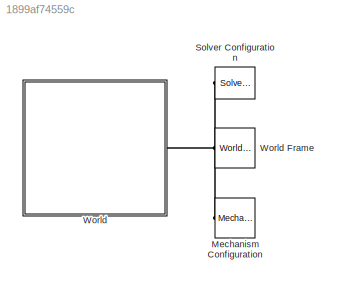
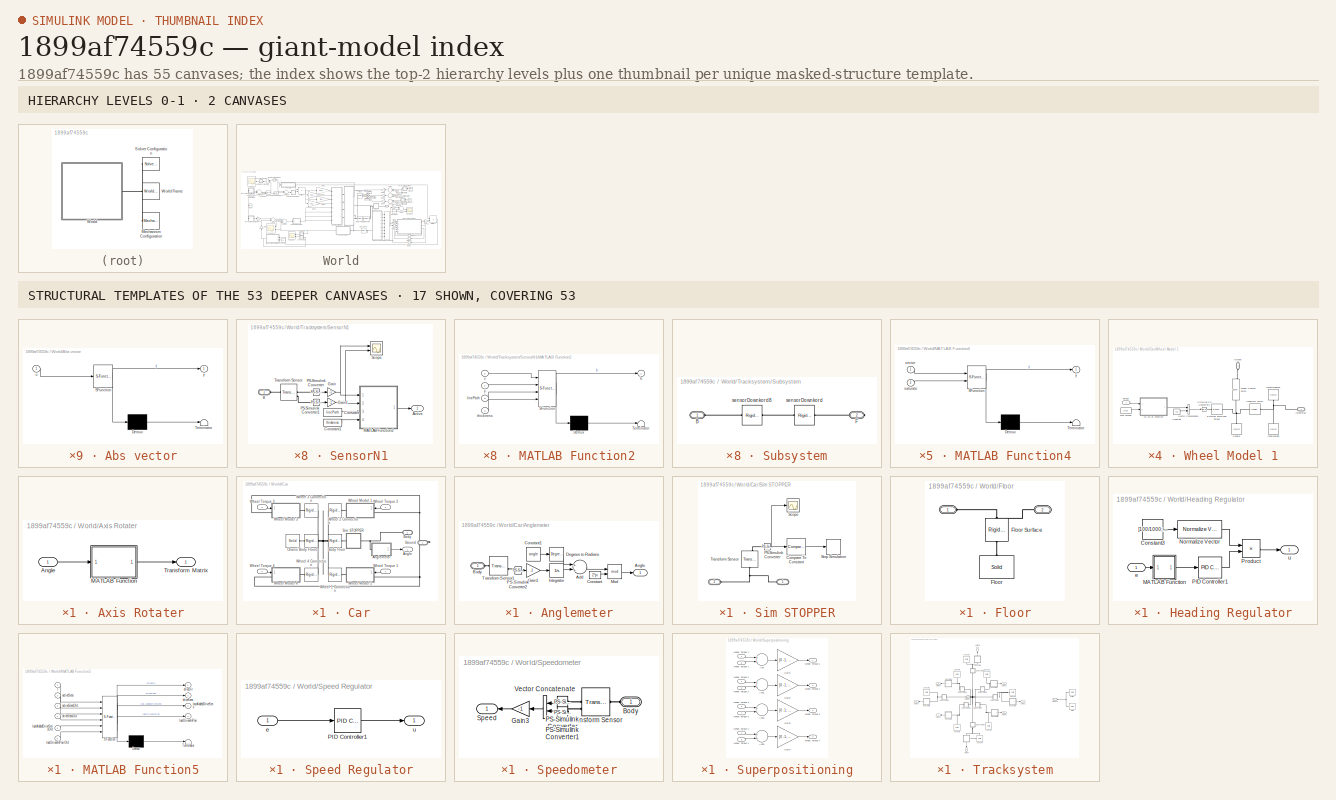
[diagram: thumbnail index - top-2 hierarchy levels (2 canvases) + 17 structural-template representatives of the remaining 53 canvases]
MODEL slx_1899af74559c
KIND model
CONFIG AbsTol = 1e-5
CONFIG EnableMultiTasking = off
CONFIG FixedStep = 0.0001
CONFIG MaxStep = auto
CONFIG MinStep = 0.00001
CONFIG RelTol = 1e-5
CONFIG SampleTimeConstraint = Unconstrained
CONFIG Solver = FixedStepAuto
CONFIG SolverName = FixedStepAuto
CONFIG StartTime = 0.0
CONFIG StopTime = 25
BLOCK [Reference] Mechanism Configuration  REF=sm_lib/Utilities/Mechanism
Configuration
  Ports = [0, 0, 0, 0, 0, 0, 1]
  SourceBlock = sm_lib/Utilities/Mechanism\nConfiguration
  SourceProductBaseCode = MS
  SourceProductName = Simscape Multibody
  SourceType = Mechanism\nConfiguration
BLOCK [Reference] Solver Configuration  REF=nesl_utility/Solver
Configuration
  Ports = [0, 0, 0, 0, 0, 0, 1]
  SourceBlock = nesl_utility/Solver\nConfiguration
  SourceProductBaseCode = SS
  SourceProductName = Simscape
  SourceType = Solver\nConfiguration
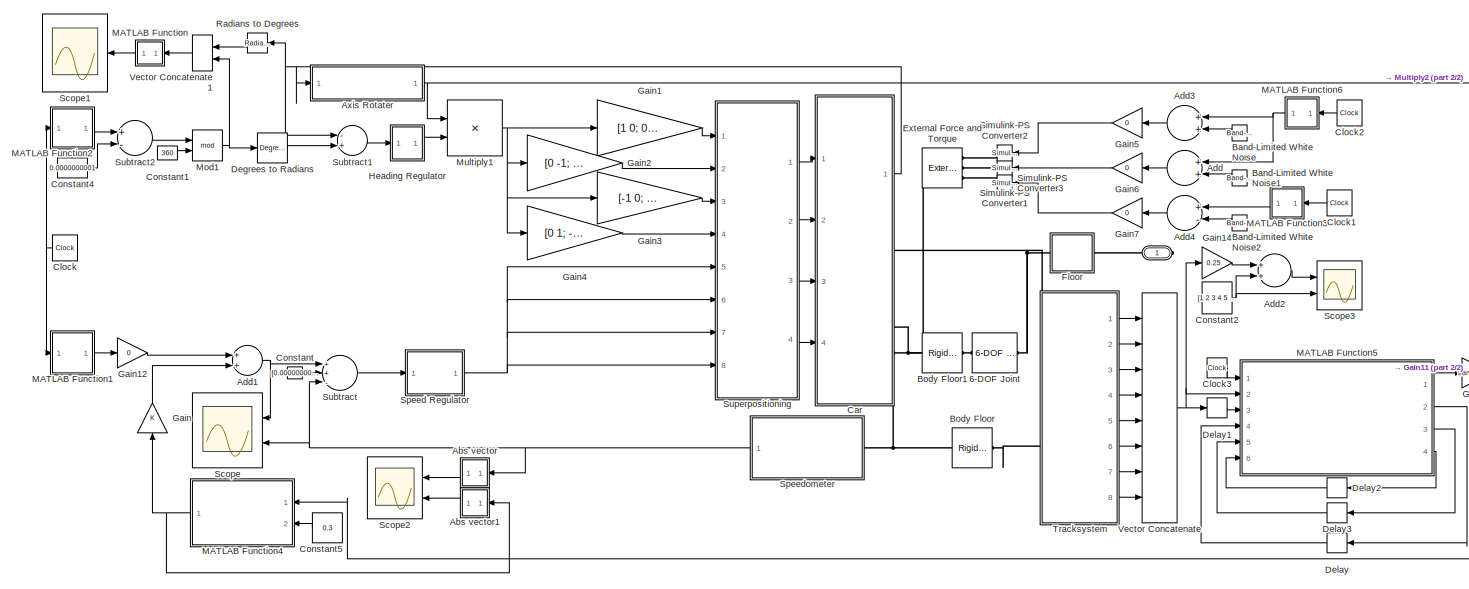
[diagram: World - part 1/2, most of the canvas]
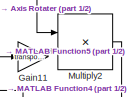
[diagram: World - part 2/2, middle right region]
BLOCK [SubSystem] World
  Ports = [0, 0, 0, 0, 0, 0, 1]
  RequestExecContextInheritance = off
BLOCK [Reference] World Frame  REF=sm_lib/Frames and
Transforms/World Frame
  Ports = [0, 0, 0, 0, 0, 0, 1]
  SourceBlock = sm_lib/Frames and\nTransforms/World Frame
  SourceProductBaseCode = MS
  SourceProductName = Simscape Multibody
  SourceType = World Frame
BLOCK [PMIOPort] World/ 
  Side = Right
BLOCK [Reference] World/6-DOF Joint  REF=sm_lib/Joints/6-DOF Joint
  Ports = [0, 0, 0, 0, 0, 1, 1]
  SourceBlock = sm_lib/Joints/6-DOF Joint
  SourceProductBaseCode = MS
  SourceProductName = Simscape Multibody
  SourceType = 6-DOF Joint
BLOCK [SubSystem] World/Abs vector
  ErrorFcn = Stateflow.Translate.translate
  PermitHierarchicalResolution = ExplicitOnly
  Ports = [1, 1]
  RequestExecContextInheritance = off
  SFBlockType = MATLAB Function
  TreatAsAtomicUnit = on
BLOCK [Demux] World/Abs vector/ Demux 
  Outputs = 1
  Ports = [1, 1]
BLOCK [S-Function] World/Abs vector/ SFunction 
  EnableBusSupport = on
  FunctionName = sf_sfun
  PortCounts = [1 2]
  Ports = [1, 2]
  SFcnIsStateOwnerBlock = off
  SFunctionDeploymentMode = off
  Tag = Stateflow S-Function model 21
BLOCK [Terminator] World/Abs vector/ Terminator 
BLOCK [Inport] World/Abs vector/u
  IconDisplay = Port number
BLOCK [Outport] World/Abs vector/y
  IconDisplay = Port number
BLOCK [SubSystem] World/Abs vector1
  ErrorFcn = Stateflow.Translate.translate
  PermitHierarchicalResolution = ExplicitOnly
  Ports = [1, 1]
  RequestExecContextInheritance = off
  SFBlockType = MATLAB Function
  TreatAsAtomicUnit = on
BLOCK [Demux] World/Abs vector1/ Demux 
  Outputs = 1
  Ports = [1, 1]
BLOCK [S-Function] World/Abs vector1/ SFunction 
  EnableBusSupport = on
  FunctionName = sf_sfun
  PortCounts = [1 2]
  Ports = [1, 2]
  SFcnIsStateOwnerBlock = off
  SFunctionDeploymentMode = off
  Tag = Stateflow S-Function model 23
BLOCK [Terminator] World/Abs vector1/ Terminator 
BLOCK [Inport] World/Abs vector1/u
  IconDisplay = Port number
BLOCK [Outport] World/Abs vector1/y
  IconDisplay = Port number
BLOCK [Sum] World/Add
  InputSameDT = off
  OutDataTypeStr = Inherit: Inherit via internal rule
  Ports = [2, 1]
  SaturateOnIntegerOverflow = off
BLOCK [Sum] World/Add1
  InputSameDT = off
  OutDataTypeStr = Inherit: Inherit via internal rule
  Ports = [2, 1]
  SaturateOnIntegerOverflow = off
BLOCK [Sum] World/Add2
  InputSameDT = off
  OutDataTypeStr = Inherit: Inherit via internal rule
  Ports = [2, 1]
  SaturateOnIntegerOverflow = off
BLOCK [Sum] World/Add3
  InputSameDT = off
  OutDataTypeStr = Inherit: Inherit via internal rule
  Ports = [2, 1]
  SaturateOnIntegerOverflow = off
BLOCK [Sum] World/Add4
  InputSameDT = off
  Inputs = +-
  OutDataTypeStr = Inherit: Inherit via internal rule
  Ports = [2, 1]
  SaturateOnIntegerOverflow = off
BLOCK [SubSystem] World/Axis Rotater
  Ports = [1, 1]
  RequestExecContextInheritance = off
BLOCK [Inport] World/Axis Rotater/Angle
  IconDisplay = Port number
BLOCK [SubSystem] World/Axis Rotater/MATLAB Function
  ErrorFcn = Stateflow.Translate.translate
  PermitHierarchicalResolution = ExplicitOnly
  Ports = [1, 1]
  RequestExecContextInheritance = off
  SFBlockType = MATLAB Function
  TreatAsAtomicUnit = on
BLOCK [Demux] World/Axis Rotater/MATLAB Function/ Demux 
  Outputs = 1
  Ports = [1, 1]
BLOCK [S-Function] World/Axis Rotater/MATLAB Function/ SFunction 
  EnableBusSupport = on
  FunctionName = sf_sfun
  PortCounts = [1 2]
  Ports = [1, 2]
  SFcnIsStateOwnerBlock = off
  SFunctionDeploymentMode = off
  Tag = Stateflow S-Function model 17
BLOCK [Terminator] World/Axis Rotater/MATLAB Function/ Terminator 
BLOCK [Inport] World/Axis Rotater/MATLAB Function/u
  IconDisplay = Port number
BLOCK [Outport] World/Axis Rotater/MATLAB Function/y
  IconDisplay = Port number
BLOCK [Outport] World/Axis Rotater/Transform Matrix
  IconDisplay = Port number
BLOCK [Reference] World/Band-Limited White Noise  REF=simulink/Sources/Band-Limited
White Noise
  Ports = [0, 1]
  SourceBlock = simulink/Sources/Band-Limited\nWhite Noise
  SourceProductBaseCode = SL
  SourceProductName = Simulink
  SourceType = Band-Limited White Noise.
BLOCK [Reference] World/Band-Limited White Noise1  REF=simulink/Sources/Band-Limited
White Noise
  Ports = [0, 1]
  SourceBlock = simulink/Sources/Band-Limited\nWhite Noise
  SourceProductBaseCode = SL
  SourceProductName = Simulink
  SourceType = Band-Limited White Noise.
BLOCK [Reference] World/Band-Limited White Noise2  REF=simulink/Sources/Band-Limited
White Noise
  Ports = [0, 1]
  SourceBlock = simulink/Sources/Band-Limited\nWhite Noise
  SourceProductBaseCode = SL
  SourceProductName = Simulink
  SourceType = Band-Limited White Noise.
BLOCK [Reference] World/Body Floor  REF=sm_lib/Frames and
Transforms/Rigid
Transform
  Ports = [0, 0, 0, 0, 0, 1, 1]
  SourceBlock = sm_lib/Frames and\nTransforms/Rigid\nTransform
  SourceProductBaseCode = MS
  SourceProductName = Simscape Multibody
  SourceType = Rigid\nTransform
BLOCK [Reference] World/Body Floor1  REF=sm_lib/Frames and
Transforms/Rigid
Transform
  Ports = [0, 0, 0, 0, 0, 1, 1]
  SourceBlock = sm_lib/Frames and\nTransforms/Rigid\nTransform
  SourceProductBaseCode = MS
  SourceProductName = Simscape Multibody
  SourceType = Rigid\nTransform
BLOCK [SubSystem] World/Car
  Ports = [4, 1, 0, 0, 0, 0, 2]
  RequestExecContextInheritance = off
BLOCK [Outport] World/Car/Angle
  IconDisplay = Port number
BLOCK [SubSystem] World/Car/Anglemeter
  Ports = [0, 1, 0, 0, 0, 1]
  RequestExecContextInheritance = off
BLOCK [Sum] World/Car/Anglemeter/Add
  InputSameDT = off
  OutDataTypeStr = Inherit: Inherit via internal rule
  Ports = [2, 1]
  SaturateOnIntegerOverflow = off
BLOCK [Outport] World/Car/Anglemeter/Angle
  IconDisplay = Port number
BLOCK [PMIOPort] World/Car/Anglemeter/Body
  Side = Left
BLOCK [Constant] World/Car/Anglemeter/Constant
  Value = 2*pi
BLOCK [Constant] World/Car/Anglemeter/Constant1
  Value = angle
BLOCK [Reference] World/Car/Anglemeter/Degrees to Radians  REF=simulink_extras/Transformations/Degrees to
Radians
  Ports = [1, 1]
  SourceBlock = simulink_extras/Transformations/Degrees to\nRadians
  SourceProductBaseCode = SL
  SourceProductName = Simulink
  SourceType = DegreesToRadians
BLOCK [Gain] World/Car/Anglemeter/Gain1
  Gain = -1
  OutDataTypeStr = Inherit: Inherit via internal rule
  ParamDataTypeStr = Inherit: Inherit via internal rule
  SaturateOnIntegerOverflow = off
BLOCK [Integrator] World/Car/Anglemeter/Integrator
  Ports = [1, 1]
BLOCK [Math] World/Car/Anglemeter/Mod
  Operator = mod
  Ports = [2, 1]
BLOCK [Reference] World/Car/Anglemeter/PS-Simulink Converter2  REF=nesl_utility/PS-Simulink
Converter
  Ports = [0, 1, 0, 0, 0, 1]
  SourceBlock = nesl_utility/PS-Simulink\nConverter
  SourceProductBaseCode = SS
  SourceProductName = Simscape
  SourceType = PS-Simulink\nConverter
BLOCK [Reference] World/Car/Anglemeter/Transform Sensor1  REF=sm_lib/Frames and
Transforms/Transform
Sensor
  Ports = [0, 0, 0, 0, 0, 1, 2]
  SourceBlock = sm_lib/Frames and\nTransforms/Transform\nSensor
  SourceProductBaseCode = MS
  SourceProductName = Simscape Multibody
  SourceType = Transform\nSensor
BLOCK [PMIOPort] World/Car/Body
  Port = 2
  Side = Right
BLOCK [Reference] World/Car/Body Floor  REF=sm_lib/Frames and
Transforms/Rigid
Transform
  Ports = [0, 0, 0, 0, 0, 1, 1]
  SourceBlock = sm_lib/Frames and\nTransforms/Rigid\nTransform
  SourceProductBaseCode = MS
  SourceProductName = Simscape Multibody
  SourceType = Rigid\nTransform
BLOCK [Reference] World/Car/Body Floor1  REF=sm_lib/Frames and
Transforms/Rigid
Transform
  Ports = [0, 0, 0, 0, 0, 1, 1]
  SourceBlock = sm_lib/Frames and\nTransforms/Rigid\nTransform
  SourceProductBaseCode = MS
  SourceProductName = Simscape Multibody
  SourceType = Rigid\nTransform
BLOCK [Reference] World/Car/Chassi  REF=sm_lib/Body Elements/Solid
  Ports = [0, 0, 0, 0, 0, 0, 1]
  SourceBlock = sm_lib/Body Elements/Solid
  SourceProductBaseCode = MS
  SourceProductName = Simscape Multibody
  SourceType = Solid
BLOCK [PMIOPort] World/Car/Ground
  Side = Right
BLOCK [SubSystem] World/Car/Sim STOPPER
  Ports = [0, 0, 0, 0, 0, 1, 1]
  RequestExecContextInheritance = off
BLOCK [PMIOPort] World/Car/Sim STOPPER/ 
  Port = 2
  Side = Left
BLOCK [Reference] World/Car/Sim STOPPER/Compare To Constant  REF=simulink/Logic and Bit
Operations/Compare
To Constant
  Ports = [1, 1]
  SourceBlock = simulink/Logic and Bit\nOperations/Compare\nTo Constant
  SourceProductBaseCode = SL
  SourceProductName = Simulink
  SourceType = Compare To Constant
BLOCK [Reference] World/Car/Sim STOPPER/PS-Simulink Converter  REF=nesl_utility/PS-Simulink
Converter
  Ports = [0, 1, 0, 0, 0, 1]
  SourceBlock = nesl_utility/PS-Simulink\nConverter
  SourceProductBaseCode = SS
  SourceProductName = Simscape
  SourceType = PS-Simulink\nConverter
BLOCK [Scope] World/Car/Sim STOPPER/Scope
  Floating = off
  NumInputPorts = 1
  Ports = [1]
  ScopeSpecificationString = Simulink.scopes.TimeScopeBlockCfg('CurrentConfiguration', extmgr.ConfigurationSet(extmgr.Configuration('Core','General UI',true),extmgr.Configuration('Core','Source UI',true),extmgr.Configuration('Sources','WiredSimulink',true,'DataLoggingVariableName','ScopeData1'),extmgr.Configuration('Visuals','Time Domain',true,'SerializedDisplays',{struct('MinYLimReal','-0.0000002','MaxYLimReal','0.0000014','...<+1440ch>
BLOCK [Stop] World/Car/Sim STOPPER/Stop Simulation
BLOCK [Reference] World/Car/Sim STOPPER/Transform Sensor  REF=sm_lib/Frames and
Transforms/Transform
Sensor
  Ports = [0, 0, 0, 0, 0, 1, 2]
  SourceBlock = sm_lib/Frames and\nTransforms/Transform\nSensor
  SourceProductBaseCode = MS
  SourceProductName = Simscape Multibody
  SourceType = Transform\nSensor
BLOCK [Reference] World/Car/Wheel 1 Connection  REF=sm_lib/Frames and
Transforms/Rigid
Transform
  Ports = [0, 0, 0, 0, 0, 1, 1]
  SourceBlock = sm_lib/Frames and\nTransforms/Rigid\nTransform
  SourceProductBaseCode = MS
  SourceProductName = Simscape Multibody
  SourceType = Rigid\nTransform
BLOCK [Reference] World/Car/Wheel 2 Connection  REF=sm_lib/Frames and
Transforms/Rigid
Transform
  Ports = [0, 0, 0, 0, 0, 1, 1]
  SourceBlock = sm_lib/Frames and\nTransforms/Rigid\nTransform
  SourceProductBaseCode = MS
  SourceProductName = Simscape Multibody
  SourceType = Rigid\nTransform
BLOCK [Reference] World/Car/Wheel 3 Connection  REF=sm_lib/Frames and
Transforms/Rigid
Transform
  Ports = [0, 0, 0, 0, 0, 1, 1]
  SourceBlock = sm_lib/Frames and\nTransforms/Rigid\nTransform
  SourceProductBaseCode = MS
  SourceProductName = Simscape Multibody
  SourceType = Rigid\nTransform
BLOCK [Reference] World/Car/Wheel 4 Connection  REF=sm_lib/Frames and
Transforms/Rigid
Transform
  Ports = [0, 0, 0, 0, 0, 1, 1]
  SourceBlock = sm_lib/Frames and\nTransforms/Rigid\nTransform
  SourceProductBaseCode = MS
  SourceProductName = Simscape Multibody
  SourceType = Rigid\nTransform
BLOCK [SubSystem] World/Car/Wheel Model 1
  Ports = [1, 0, 0, 0, 0, 1, 1]
  RequestExecContextInheritance = off
BLOCK [Constant] World/Car/Wheel Model 1/Constant
  Value = [0]
BLOCK [Reference] World/Car/Wheel Model 1/External Force and Torque  REF=sm_lib/Forces and
Torques/External Force
and Torque
  Ports = [0, 0, 0, 0, 0, 1, 1]
  SourceBlock = sm_lib/Forces and\nTorques/External Force\nand Torque
  SourceProductBaseCode = MS
  SourceProductName = Simscape Multibody
  SourceType = External Force\nand Torque
BLOCK [PMIOPort] World/Car/Wheel Model 1/Ground
  Side = Left
BLOCK [PMIOPort] World/Car/Wheel Model 1/Infastning
  Port = 2
  Side = Right
BLOCK [Reference] World/Car/Wheel Model 1/Infastningshus  REF=sm_lib/Body Elements/Solid
  Ports = [0, 0, 0, 0, 0, 0, 1]
  SourceBlock = sm_lib/Body Elements/Solid
  SourceProductBaseCode = MS
  SourceProductName = Simscape Multibody
  SourceType = Solid
BLOCK [Reference] World/Car/Wheel Model 1/InnerWeight  REF=sm_lib/Body Elements/Solid
  Ports = [0, 0, 0, 0, 0, 0, 1]
  SourceBlock = sm_lib/Body Elements/Solid
  SourceProductBaseCode = MS
  SourceProductName = Simscape Multibody
  SourceType = Solid
BLOCK [SubSystem] World/Car/Wheel Model 1/MATLAB Function
  ErrorFcn = Stateflow.Translate.translate
  PermitHierarchicalResolution = ExplicitOnly
  Ports = [2, 1]
  RequestExecContextInheritance = off
  SFBlockType = MATLAB Function
  TreatAsAtomicUnit = on
BLOCK [Demux] World/Car/Wheel Model 1/MATLAB Function/ Demux 
  Outputs = 1
  Ports = [1, 1]
BLOCK [S-Function] World/Car/Wheel Model 1/MATLAB Function/ SFunction 
  EnableBusSupport = on
  FunctionName = sf_sfun
  PortCounts = [2 2]
  Ports = [2, 2]
  SFcnIsStateOwnerBlock = off
  SFunctionDeploymentMode = off
  Tag = Stateflow S-Function model 1
BLOCK [Terminator] World/Car/Wheel Model 1/MATLAB Function/ Terminator 
BLOCK [Inport] World/Car/Wheel Model 1/MATLAB Function/saturate
  IconDisplay = Port number
  Port = 2
BLOCK [Inport] World/Car/Wheel Model 1/MATLAB Function/vector
  IconDisplay = Port number
BLOCK [Outport] World/Car/Wheel Model 1/MATLAB Function/y
  IconDisplay = Port number
BLOCK [Constant] World/Car/Wheel Model 1/Max Torque
  Value = 0.03
BLOCK [Reference] World/Car/Wheel Model 1/Simulink-PS Converter2  REF=nesl_utility/Simulink-PS
Converter
  Ports = [1, 0, 0, 0, 0, 0, 1]
  SourceBlock = nesl_utility/Simulink-PS\nConverter
  SourceProductBaseCode = SS
  SourceProductName = Simscape
  SourceType = Simulink-PS\nConverter
BLOCK [Reference] World/Car/Wheel Model 1/Sphere  REF=sm_lib/Body Elements/Solid
  Ports = [0, 0, 0, 0, 0, 0, 1]
  SourceBlock = sm_lib/Body Elements/Solid
  SourceProductBaseCode = MS
  SourceProductName = Simscape Multibody
  SourceType = Solid
BLOCK [Reference] World/Car/Wheel Model 1/Spherical Joint1  REF=sm_lib/Joints/Spherical
Joint
  Ports = [0, 0, 0, 0, 0, 1, 1]
  SourceBlock = sm_lib/Joints/Spherical\nJoint
  SourceProductBaseCode = MS
  SourceProductName = Simscape Multibody
  SourceType = Spherical\nJoint
BLOCK [Inport] World/Car/Wheel Model 1/Torque
  IconDisplay = Port number
BLOCK [Concatenate] World/Car/Wheel Model 1/Vector Concatenate
  Ports = [2, 1]
BLOCK [Reference] World/Car/Wheel Model 1/Wheel Contact Force  REF=Contact_Forces_Lib/3D/Sphere to Plane Force
  Ports = [0, 1, 0, 0, 0, 1, 1]
  SourceBlock = Contact_Forces_Lib/3D/Sphere to Plane Force
  SourceProductName = Simscape Multibody Contact Forces Library
  SourceType = Sphere to Plane Force
BLOCK [SubSystem] World/Car/Wheel Model 2
  Ports = [1, 0, 0, 0, 0, 1, 1]
  RequestExecContextInheritance = off
BLOCK [Constant] World/Car/Wheel Model 2/Constant
  Value = [0]
BLOCK [Reference] World/Car/Wheel Model 2/External Force and Torque  REF=sm_lib/Forces and
Torques/External Force
and Torque
  Ports = [0, 0, 0, 0, 0, 1, 1]
  SourceBlock = sm_lib/Forces and\nTorques/External Force\nand Torque
  SourceProductBaseCode = MS
  SourceProductName = Simscape Multibody
  SourceType = External Force\nand Torque
BLOCK [PMIOPort] World/Car/Wheel Model 2/Ground
  Side = Left
BLOCK [PMIOPort] World/Car/Wheel Model 2/Infastning
  Port = 2
  Side = Right
BLOCK [Reference] World/Car/Wheel Model 2/Infastningshus  REF=sm_lib/Body Elements/Solid
  Ports = [0, 0, 0, 0, 0, 0, 1]
  SourceBlock = sm_lib/Body Elements/Solid
  SourceProductBaseCode = MS
  SourceProductName = Simscape Multibody
  SourceType = Solid
BLOCK [Reference] World/Car/Wheel Model 2/InnerWeight  REF=sm_lib/Body Elements/Solid
  Ports = [0, 0, 0, 0, 0, 0, 1]
  SourceBlock = sm_lib/Body Elements/Solid
  SourceProductBaseCode = MS
  SourceProductName = Simscape Multibody
  SourceType = Solid
BLOCK [SubSystem] World/Car/Wheel Model 2/MATLAB Function
  ErrorFcn = Stateflow.Translate.translate
  PermitHierarchicalResolution = ExplicitOnly
  Ports = [2, 1]
  RequestExecContextInheritance = off
  SFBlockType = MATLAB Function
  TreatAsAtomicUnit = on
BLOCK [Demux] World/Car/Wheel Model 2/MATLAB Function/ Demux 
  Outputs = 1
  Ports = [1, 1]
BLOCK [S-Function] World/Car/Wheel Model 2/MATLAB Function/ SFunction 
  EnableBusSupport = on
  FunctionName = sf_sfun
  PortCounts = [2 2]
  Ports = [2, 2]
  SFcnIsStateOwnerBlock = off
  SFunctionDeploymentMode = off
  Tag = Stateflow S-Function model 2
BLOCK [Terminator] World/Car/Wheel Model 2/MATLAB Function/ Terminator 
BLOCK [Inport] World/Car/Wheel Model 2/MATLAB Function/saturate
  IconDisplay = Port number
  Port = 2
BLOCK [Inport] World/Car/Wheel Model 2/MATLAB Function/vector
  IconDisplay = Port number
BLOCK [Outport] World/Car/Wheel Model 2/MATLAB Function/y
  IconDisplay = Port number
BLOCK [Constant] World/Car/Wheel Model 2/Max Torque
  Value = 0.03
BLOCK [Reference] World/Car/Wheel Model 2/Simulink-PS Converter2  REF=nesl_utility/Simulink-PS
Converter
  Ports = [1, 0, 0, 0, 0, 0, 1]
  SourceBlock = nesl_utility/Simulink-PS\nConverter
  SourceProductBaseCode = SS
  SourceProductName = Simscape
  SourceType = Simulink-PS\nConverter
BLOCK [Reference] World/Car/Wheel Model 2/Sphere  REF=sm_lib/Body Elements/Solid
  Ports = [0, 0, 0, 0, 0, 0, 1]
  SourceBlock = sm_lib/Body Elements/Solid
  SourceProductBaseCode = MS
  SourceProductName = Simscape Multibody
  SourceType = Solid
BLOCK [Reference] World/Car/Wheel Model 2/Spherical Joint1  REF=sm_lib/Joints/Spherical
Joint
  Ports = [0, 0, 0, 0, 0, 1, 1]
  SourceBlock = sm_lib/Joints/Spherical\nJoint
  SourceProductBaseCode = MS
  SourceProductName = Simscape Multibody
  SourceType = Spherical\nJoint
BLOCK [Inport] World/Car/Wheel Model 2/Torque
  IconDisplay = Port number
BLOCK [Concatenate] World/Car/Wheel Model 2/Vector Concatenate
  Ports = [2, 1]
BLOCK [Reference] World/Car/Wheel Model 2/Wheel Contact Force  REF=Contact_Forces_Lib/3D/Sphere to Plane Force
  Ports = [0, 1, 0, 0, 0, 1, 1]
  SourceBlock = Contact_Forces_Lib/3D/Sphere to Plane Force
  SourceProductName = Simscape Multibody Contact Forces Library
  SourceType = Sphere to Plane Force
BLOCK [SubSystem] World/Car/Wheel Model 3
  Ports = [1, 0, 0, 0, 0, 1, 1]
  RequestExecContextInheritance = off
BLOCK [Constant] World/Car/Wheel Model 3/Constant
  Value = [0]
BLOCK [Reference] World/Car/Wheel Model 3/External Force and Torque  REF=sm_lib/Forces and
Torques/External Force
and Torque
  Ports = [0, 0, 0, 0, 0, 1, 1]
  SourceBlock = sm_lib/Forces and\nTorques/External Force\nand Torque
  SourceProductBaseCode = MS
  SourceProductName = Simscape Multibody
  SourceType = External Force\nand Torque
BLOCK [PMIOPort] World/Car/Wheel Model 3/Ground
  Side = Left
BLOCK [PMIOPort] World/Car/Wheel Model 3/Infastning
  Port = 2
  Side = Right
BLOCK [Reference] World/Car/Wheel Model 3/Infastningshus  REF=sm_lib/Body Elements/Solid
  Ports = [0, 0, 0, 0, 0, 0, 1]
  SourceBlock = sm_lib/Body Elements/Solid
  SourceProductBaseCode = MS
  SourceProductName = Simscape Multibody
  SourceType = Solid
BLOCK [Reference] World/Car/Wheel Model 3/InnerWeight  REF=sm_lib/Body Elements/Solid
  Ports = [0, 0, 0, 0, 0, 0, 1]
  SourceBlock = sm_lib/Body Elements/Solid
  SourceProductBaseCode = MS
  SourceProductName = Simscape Multibody
  SourceType = Solid
BLOCK [SubSystem] World/Car/Wheel Model 3/MATLAB Function
  ErrorFcn = Stateflow.Translate.translate
  PermitHierarchicalResolution = ExplicitOnly
  Ports = [2, 1]
  RequestExecContextInheritance = off
  SFBlockType = MATLAB Function
  TreatAsAtomicUnit = on
BLOCK [Demux] World/Car/Wheel Model 3/MATLAB Function/ Demux 
  Outputs = 1
  Ports = [1, 1]
BLOCK [S-Function] World/Car/Wheel Model 3/MATLAB Function/ SFunction 
  EnableBusSupport = on
  FunctionName = sf_sfun
  PortCounts = [2 2]
  Ports = [2, 2]
  SFcnIsStateOwnerBlock = off
  SFunctionDeploymentMode = off
  Tag = Stateflow S-Function model 3
BLOCK [Terminator] World/Car/Wheel Model 3/MATLAB Function/ Terminator 
BLOCK [Inport] World/Car/Wheel Model 3/MATLAB Function/saturate
  IconDisplay = Port number
  Port = 2
BLOCK [Inport] World/Car/Wheel Model 3/MATLAB Function/vector
  IconDisplay = Port number
BLOCK [Outport] World/Car/Wheel Model 3/MATLAB Function/y
  IconDisplay = Port number
BLOCK [Constant] World/Car/Wheel Model 3/Max Torque
  Value = 0.03
BLOCK [Reference] World/Car/Wheel Model 3/Simulink-PS Converter2  REF=nesl_utility/Simulink-PS
Converter
  Ports = [1, 0, 0, 0, 0, 0, 1]
  SourceBlock = nesl_utility/Simulink-PS\nConverter
  SourceProductBaseCode = SS
  SourceProductName = Simscape
  SourceType = Simulink-PS\nConverter
BLOCK [Reference] World/Car/Wheel Model 3/Sphere  REF=sm_lib/Body Elements/Solid
  Ports = [0, 0, 0, 0, 0, 0, 1]
  SourceBlock = sm_lib/Body Elements/Solid
  SourceProductBaseCode = MS
  SourceProductName = Simscape Multibody
  SourceType = Solid
BLOCK [Reference] World/Car/Wheel Model 3/Spherical Joint1  REF=sm_lib/Joints/Spherical
Joint
  Ports = [0, 0, 0, 0, 0, 1, 1]
  SourceBlock = sm_lib/Joints/Spherical\nJoint
  SourceProductBaseCode = MS
  SourceProductName = Simscape Multibody
  SourceType = Spherical\nJoint
BLOCK [Inport] World/Car/Wheel Model 3/Torque
  IconDisplay = Port number
BLOCK [Concatenate] World/Car/Wheel Model 3/Vector Concatenate
  Ports = [2, 1]
BLOCK [Reference] World/Car/Wheel Model 3/Wheel Contact Force  REF=Contact_Forces_Lib/3D/Sphere to Plane Force
  Ports = [0, 1, 0, 0, 0, 1, 1]
  SourceBlock = Contact_Forces_Lib/3D/Sphere to Plane Force
  SourceProductName = Simscape Multibody Contact Forces Library
  SourceType = Sphere to Plane Force
BLOCK [SubSystem] World/Car/Wheel Model 4
  Ports = [1, 0, 0, 0, 0, 1, 1]
  RequestExecContextInheritance = off
BLOCK [Constant] World/Car/Wheel Model 4/Constant
  Value = [0]
BLOCK [Reference] World/Car/Wheel Model 4/External Force and Torque  REF=sm_lib/Forces and
Torques/External Force
and Torque
  Ports = [0, 0, 0, 0, 0, 1, 1]
  SourceBlock = sm_lib/Forces and\nTorques/External Force\nand Torque
  SourceProductBaseCode = MS
  SourceProductName = Simscape Multibody
  SourceType = External Force\nand Torque
BLOCK [PMIOPort] World/Car/Wheel Model 4/Ground
  Side = Left
BLOCK [PMIOPort] World/Car/Wheel Model 4/Infastning
  Port = 2
  Side = Right
BLOCK [Reference] World/Car/Wheel Model 4/Infastningshus  REF=sm_lib/Body Elements/Solid
  Ports = [0, 0, 0, 0, 0, 0, 1]
  SourceBlock = sm_lib/Body Elements/Solid
  SourceProductBaseCode = MS
  SourceProductName = Simscape Multibody
  SourceType = Solid
BLOCK [Reference] World/Car/Wheel Model 4/InnerWeight  REF=sm_lib/Body Elements/Solid
  Ports = [0, 0, 0, 0, 0, 0, 1]
  SourceBlock = sm_lib/Body Elements/Solid
  SourceProductBaseCode = MS
  SourceProductName = Simscape Multibody
  SourceType = Solid
BLOCK [SubSystem] World/Car/Wheel Model 4/MATLAB Function
  ErrorFcn = Stateflow.Translate.translate
  PermitHierarchicalResolution = ExplicitOnly
  Ports = [2, 1]
  RequestExecContextInheritance = off
  SFBlockType = MATLAB Function
  TreatAsAtomicUnit = on
BLOCK [Demux] World/Car/Wheel Model 4/MATLAB Function/ Demux 
  Outputs = 1
  Ports = [1, 1]
BLOCK [S-Function] World/Car/Wheel Model 4/MATLAB Function/ SFunction 
  EnableBusSupport = on
  FunctionName = sf_sfun
  PortCounts = [2 2]
  Ports = [2, 2]
  SFcnIsStateOwnerBlock = off
  SFunctionDeploymentMode = off
  Tag = Stateflow S-Function model 4
BLOCK [Terminator] World/Car/Wheel Model 4/MATLAB Function/ Terminator 
BLOCK [Inport] World/Car/Wheel Model 4/MATLAB Function/saturate
  IconDisplay = Port number
  Port = 2
BLOCK [Inport] World/Car/Wheel Model 4/MATLAB Function/vector
  IconDisplay = Port number
BLOCK [Outport] World/Car/Wheel Model 4/MATLAB Function/y
  IconDisplay = Port number
BLOCK [Constant] World/Car/Wheel Model 4/Max Torque
  Value = 0.03
BLOCK [Reference] World/Car/Wheel Model 4/Simulink-PS Converter2  REF=nesl_utility/Simulink-PS
Converter
  Ports = [1, 0, 0, 0, 0, 0, 1]
  SourceBlock = nesl_utility/Simulink-PS\nConverter
  SourceProductBaseCode = SS
  SourceProductName = Simscape
  SourceType = Simulink-PS\nConverter
BLOCK [Reference] World/Car/Wheel Model 4/Sphere  REF=sm_lib/Body Elements/Solid
  Ports = [0, 0, 0, 0, 0, 0, 1]
  SourceBlock = sm_lib/Body Elements/Solid
  SourceProductBaseCode = MS
  SourceProductName = Simscape Multibody
  SourceType = Solid
BLOCK [Reference] World/Car/Wheel Model 4/Spherical Joint1  REF=sm_lib/Joints/Spherical
Joint
  Ports = [0, 0, 0, 0, 0, 1, 1]
  SourceBlock = sm_lib/Joints/Spherical\nJoint
  SourceProductBaseCode = MS
  SourceProductName = Simscape Multibody
  SourceType = Spherical\nJoint
BLOCK [Inport] World/Car/Wheel Model 4/Torque
  IconDisplay = Port number
BLOCK [Concatenate] World/Car/Wheel Model 4/Vector Concatenate
  Ports = [2, 1]
BLOCK [Reference] World/Car/Wheel Model 4/Wheel Contact Force  REF=Contact_Forces_Lib/3D/Sphere to Plane Force
  Ports = [0, 1, 0, 0, 0, 1, 1]
  SourceBlock = Contact_Forces_Lib/3D/Sphere to Plane Force
  SourceProductName = Simscape Multibody Contact Forces Library
  SourceType = Sphere to Plane Force
BLOCK [Inport] World/Car/Wheel Torque 1
  IconDisplay = Port number
BLOCK [Inport] World/Car/Wheel Torque 2
  IconDisplay = Port number
  Port = 2
BLOCK [Inport] World/Car/Wheel Torque 3
  IconDisplay = Port number
  Port = 3
BLOCK [Inport] World/Car/Wheel Torque 4
  IconDisplay = Port number
  Port = 4
BLOCK [Clock] World/Clock
BLOCK [Clock] World/Clock1
BLOCK [Clock] World/Clock2
BLOCK [Clock] World/Clock3
BLOCK [Constant] World/Constant
  Value = [0.0000000001; 0.0000000001]
BLOCK [Constant] World/Constant1
  Value = 360
BLOCK [Constant] World/Constant2
  Value = [1 2 3 4 5 6 7 8]
BLOCK [Constant] World/Constant4
  Value = 0.0000000001
BLOCK [Constant] World/Constant5
  Value = 0.3
BLOCK [Reference] World/Degrees to Radians  REF=simulink_extras/Transformations/Degrees to
Radians
  Ports = [1, 1]
  SourceBlock = simulink_extras/Transformations/Degrees to\nRadians
  SourceProductBaseCode = SL
  SourceProductName = Simulink
  SourceType = DegreesToRadians
BLOCK [Delay] World/Delay
  DelayLength = 1
  InitialCondition = [0,0,1,0,0,0,0,0]
  InputPortMap = u0
  Ports = [1, 1]
BLOCK [Delay] World/Delay1
  DelayLength = 1
  InitialCondition = [1,1,1,1,1,1,1,1]
  InputPortMap = u0
  Ports = [1, 1]
BLOCK [Delay] World/Delay2
  DelayLength = 1
  InitialCondition = [1,0,0,0,0,0,0,0]
  InputPortMap = u0
  Ports = [1, 1]
BLOCK [Delay] World/Delay3
  DelayLength = 1
  InitialCondition = [1,0,1,0]
  InputPortMap = u0
  Ports = [1, 1]
BLOCK [Reference] World/External Force and Torque  REF=sm_lib/Forces and
Torques/External Force
and Torque
  Ports = [0, 0, 0, 0, 0, 3, 1]
  SourceBlock = sm_lib/Forces and\nTorques/External Force\nand Torque
  SourceProductBaseCode = MS
  SourceProductName = Simscape Multibody
  SourceType = External Force\nand Torque
BLOCK [SubSystem] World/Floor
  Ports = [0, 0, 0, 0, 0, 1, 1]
  RequestExecContextInheritance = off
BLOCK [PMIOPort] World/Floor/ 
  Port = 2
  Side = Right
BLOCK [Reference] World/Floor/Floor  REF=sm_lib/Body Elements/Solid
  Ports = [0, 0, 0, 0, 0, 0, 1]
  SourceBlock = sm_lib/Body Elements/Solid
  SourceProductBaseCode = MS
  SourceProductName = Simscape Multibody
  SourceType = Solid
BLOCK [Reference] World/Floor/Floor Surface  REF=sm_lib/Frames and
Transforms/Rigid
Transform
  Ports = [0, 0, 0, 0, 0, 1, 1]
  SourceBlock = sm_lib/Frames and\nTransforms/Rigid\nTransform
  SourceProductBaseCode = MS
  SourceProductName = Simscape Multibody
  SourceType = Rigid\nTransform
BLOCK [Gain] World/Gain
  OutDataTypeStr = Inherit: Inherit via internal rule
  ParamDataTypeStr = Inherit: Inherit via internal rule
  SaturateOnIntegerOverflow = off
BLOCK [Gain] World/Gain1
  Gain = [1 0; 0 1]
  Multiplication = Matrix(K*u)
  OutDataTypeStr = Inherit: Inherit via internal rule
  ParamDataTypeStr = Inherit: Inherit via internal rule
  SaturateOnIntegerOverflow = off
BLOCK [Gain] World/Gain11
  Gain = transpose([1 0; 1/sqrt(2) 1/sqrt(2); 0 1; -1/sqrt(2) 1/sqrt(2)])
  Multiplication = Matrix(K*u)
  OutDataTypeStr = Inherit: Inherit via internal rule
  ParamDataTypeStr = Inherit: Inherit via internal rule
  SaturateOnIntegerOverflow = off
BLOCK [Gain] World/Gain12
  Gain = 0
  OutDataTypeStr = Inherit: Inherit via internal rule
  ParamDataTypeStr = Inherit: Inherit via internal rule
  SaturateOnIntegerOverflow = off
BLOCK [Gain] World/Gain14
  Gain = 0.25
  OutDataTypeStr = Inherit: Inherit via internal rule
  ParamDataTypeStr = Inherit: Inherit via internal rule
  SaturateOnIntegerOverflow = off
BLOCK [Gain] World/Gain2
  Gain = [0 -1; 1 0]
  Multiplication = Matrix(K*u)
  OutDataTypeStr = Inherit: Inherit via internal rule
  ParamDataTypeStr = Inherit: Inherit via internal rule
  SaturateOnIntegerOverflow = off
BLOCK [Gain] World/Gain3
  Gain = [-1 0; 0 -1]
  Multiplication = Matrix(K*u)
  OutDataTypeStr = Inherit: Inherit via internal rule
  ParamDataTypeStr = Inherit: Inherit via internal rule
  SaturateOnIntegerOverflow = off
BLOCK [Gain] World/Gain4
  Gain = [0 1; -1 0]
  Multiplication = Matrix(K*u)
  OutDataTypeStr = Inherit: Inherit via internal rule
  ParamDataTypeStr = Inherit: Inherit via internal rule
  SaturateOnIntegerOverflow = off
BLOCK [Gain] World/Gain5
  Gain = 0
  OutDataTypeStr = Inherit: Inherit via internal rule
  ParamDataTypeStr = Inherit: Inherit via internal rule
  SaturateOnIntegerOverflow = off
BLOCK [Gain] World/Gain6
  Gain = 0
  OutDataTypeStr = Inherit: Inherit via internal rule
  ParamDataTypeStr = Inherit: Inherit via internal rule
  SaturateOnIntegerOverflow = off
BLOCK [Gain] World/Gain7
  Gain = 0
  OutDataTypeStr = Inherit: Inherit via internal rule
  ParamDataTypeStr = Inherit: Inherit via internal rule
  SaturateOnIntegerOverflow = off
BLOCK [SubSystem] World/Heading Regulator
  Ports = [1, 1]
  RequestExecContextInheritance = off
BLOCK [Constant] World/Heading Regulator/Constant3
  Value = [100/1000; 120/1000]
BLOCK [SubSystem] World/Heading Regulator/MATLAB Function
  ErrorFcn = Stateflow.Translate.translate
  PermitHierarchicalResolution = ExplicitOnly
  Ports = [1, 1]
  RequestExecContextInheritance = off
  SFBlockType = MATLAB Function
  TreatAsAtomicUnit = on
BLOCK [Demux] World/Heading Regulator/MATLAB Function/ Demux 
  Outputs = 1
  Ports = [1, 1]
BLOCK [S-Function] World/Heading Regulator/MATLAB Function/ SFunction 
  EnableBusSupport = on
  FunctionName = sf_sfun
  PortCounts = [1 2]
  Ports = [1, 2]
  SFcnIsStateOwnerBlock = off
  SFunctionDeploymentMode = off
  Tag = Stateflow S-Function model 5
BLOCK [Terminator] World/Heading Regulator/MATLAB Function/ Terminator 
BLOCK [Inport] World/Heading Regulator/MATLAB Function/u
  IconDisplay = Port number
BLOCK [Outport] World/Heading Regulator/MATLAB Function/y
  IconDisplay = Port number
BLOCK [Reference] World/Heading Regulator/Normalize Vector  REF=vrlib/Utilities/Normalize Vector
  Ports = [1, 1]
  SourceBlock = vrlib/Utilities/Normalize Vector
  SourceProductBaseCode = VR
  SourceProductName = Simulink 3D Animation
  SourceType = Normalize Vector
BLOCK [Reference] World/Heading Regulator/PID Controller1  REF=simulink/Continuous/PID Controller
  Ports = [1, 1]
  SourceBlock = simulink/Continuous/PID Controller
  SourceProductBaseCode = SL
  SourceProductName = Simulink
  SourceType = PID 1dof
BLOCK [Product] World/Heading Regulator/Product
  InputSameDT = off
  OutDataTypeStr = Inherit: Inherit via internal rule
  Ports = [2, 1]
  RndMeth = Floor
  SaturateOnIntegerOverflow = off
BLOCK [Inport] World/Heading Regulator/e
  IconDisplay = Port number
BLOCK [Outport] World/Heading Regulator/u
  IconDisplay = Port number
BLOCK [SubSystem] World/MATLAB Function
  ErrorFcn = Stateflow.Translate.translate
  PermitHierarchicalResolution = ExplicitOnly
  Ports = [1, 1]
  RequestExecContextInheritance = off
  SFBlockType = MATLAB Function
  TreatAsAtomicUnit = on
BLOCK [Demux] World/MATLAB Function/ Demux 
  Outputs = 1
  Ports = [1, 1]
BLOCK [S-Function] World/MATLAB Function/ SFunction 
  EnableBusSupport = on
  FunctionName = sf_sfun
  PortCounts = [1 2]
  Ports = [1, 2]
  SFcnIsStateOwnerBlock = off
  SFunctionDeploymentMode = off
  Tag = Stateflow S-Function model 22
BLOCK [Terminator] World/MATLAB Function/ Terminator 
BLOCK [Inport] World/MATLAB Function/u
  IconDisplay = Port number
BLOCK [Outport] World/MATLAB Function/y
  IconDisplay = Port number
BLOCK [SubSystem] World/MATLAB Function1
  ErrorFcn = Stateflow.Translate.translate
  PermitHierarchicalResolution = ExplicitOnly
  Ports = [1, 1]
  RequestExecContextInheritance = off
  SFBlockType = MATLAB Function
  TreatAsAtomicUnit = on
BLOCK [Demux] World/MATLAB Function1/ Demux 
  Outputs = 1
  Ports = [1, 1]
BLOCK [S-Function] World/MATLAB Function1/ SFunction 
  EnableBusSupport = on
  FunctionName = sf_sfun
  PortCounts = [1 2]
  Ports = [1, 2]
  SFcnIsStateOwnerBlock = off
  SFunctionDeploymentMode = off
  Tag = Stateflow S-Function model 6
BLOCK [Terminator] World/MATLAB Function1/ Terminator 
BLOCK [Inport] World/MATLAB Function1/t
  IconDisplay = Port number
BLOCK [Outport] World/MATLAB Function1/y
  IconDisplay = Port number
BLOCK [SubSystem] World/MATLAB Function2
  ErrorFcn = Stateflow.Translate.translate
  PermitHierarchicalResolution = ExplicitOnly
  Ports = [1, 1]
  RequestExecContextInheritance = off
  SFBlockType = MATLAB Function
  TreatAsAtomicUnit = on
BLOCK [Demux] World/MATLAB Function2/ Demux 
  Outputs = 1
  Ports = [1, 1]
BLOCK [S-Function] World/MATLAB Function2/ SFunction 
  EnableBusSupport = on
  FunctionName = sf_sfun
  PortCounts = [1 2]
  Ports = [1, 2]
  SFcnIsStateOwnerBlock = off
  SFunctionDeploymentMode = off
  Tag = Stateflow S-Function model 7
BLOCK [Terminator] World/MATLAB Function2/ Terminator 
BLOCK [Inport] World/MATLAB Function2/t
  IconDisplay = Port number
BLOCK [Outport] World/MATLAB Function2/y
  IconDisplay = Port number
BLOCK [SubSystem] World/MATLAB Function3
  ErrorFcn = Stateflow.Translate.translate
  PermitHierarchicalResolution = ExplicitOnly
  Ports = [1, 1]
  RequestExecContextInheritance = off
  SFBlockType = MATLAB Function
  TreatAsAtomicUnit = on
BLOCK [Demux] World/MATLAB Function3/ Demux 
  Outputs = 1
  Ports = [1, 1]
BLOCK [S-Function] World/MATLAB Function3/ SFunction 
  EnableBusSupport = on
  FunctionName = sf_sfun
  PortCounts = [1 2]
  Ports = [1, 2]
  SFcnIsStateOwnerBlock = off
  SFunctionDeploymentMode = off
  Tag = Stateflow S-Function model 15
BLOCK [Terminator] World/MATLAB Function3/ Terminator 
BLOCK [Inport] World/MATLAB Function3/t
  IconDisplay = Port number
BLOCK [Outport] World/MATLAB Function3/y
  IconDisplay = Port number
BLOCK [SubSystem] World/MATLAB Function4
  ErrorFcn = Stateflow.Translate.translate
  PermitHierarchicalResolution = ExplicitOnly
  Ports = [2, 1]
  RequestExecContextInheritance = off
  SFBlockType = MATLAB Function
  TreatAsAtomicUnit = on
BLOCK [Demux] World/MATLAB Function4/ Demux 
  Outputs = 1
  Ports = [1, 1]
BLOCK [S-Function] World/MATLAB Function4/ SFunction 
  EnableBusSupport = on
  FunctionName = sf_sfun
  PortCounts = [2 2]
  Ports = [2, 2]
  SFcnIsStateOwnerBlock = off
  SFunctionDeploymentMode = off
  Tag = Stateflow S-Function model 19
BLOCK [Terminator] World/MATLAB Function4/ Terminator 
BLOCK [Inport] World/MATLAB Function4/saturate
  IconDisplay = Port number
  Port = 2
BLOCK [Inport] World/MATLAB Function4/vector
  IconDisplay = Port number
BLOCK [Outport] World/MATLAB Function4/y
  IconDisplay = Port number
BLOCK [SubSystem] World/MATLAB Function5
  ErrorFcn = Stateflow.Translate.translate
  PermitHierarchicalResolution = ExplicitOnly
  Ports = [6, 4]
  RequestExecContextInheritance = off
  SFBlockType = MATLAB Function
  TreatAsAtomicUnit = on
BLOCK [Demux] World/MATLAB Function5/ Demux 
  Outputs = 1
  Ports = [1, 1]
BLOCK [S-Function] World/MATLAB Function5/ SFunction 
  EnableBusSupport = on
  FunctionName = sf_sfun
  PortCounts = [6 5]
  Ports = [6, 5]
  SFcnIsStateOwnerBlock = off
  SFunctionDeploymentMode = off
  Tag = Stateflow S-Function model 18
BLOCK [Terminator] World/MATLAB Function5/ Terminator 
BLOCK [Inport] World/MATLAB Function5/activeSens
  IconDisplay = Port number
  Port = 2
BLOCK [Inport] World/MATLAB Function5/activeSensOld
  IconDisplay = Port number
  Port = 3
BLOCK [Outport] World/MATLAB Function5/driveDir
  IconDisplay = Port number
BLOCK [Outport] World/MATLAB Function5/driveSens
  IconDisplay = Port number
  Port = 2
BLOCK [Inport] World/MATLAB Function5/driveSensOld
  IconDisplay = Port number
  Port = 4
BLOCK [Outport] World/MATLAB Function5/lastAddedDriveSens
  IconDisplay = Port number
  Port = 3
BLOCK [Inport] World/MATLAB Function5/lastAddedDriveSensOld
  IconDisplay = Port number
  Port = 5
BLOCK [Outport] World/MATLAB Function5/lastDrivenInPair
  IconDisplay = Port number
  Port = 4
BLOCK [Inport] World/MATLAB Function5/lastDrivenInPairOld
  IconDisplay = Port number
  Port = 6
BLOCK [Inport] World/MATLAB Function5/t
  IconDisplay = Port number
BLOCK [SubSystem] World/MATLAB Function6
  ErrorFcn = Stateflow.Translate.translate
  PermitHierarchicalResolution = ExplicitOnly
  Ports = [1, 1]
  RequestExecContextInheritance = off
  SFBlockType = MATLAB Function
  TreatAsAtomicUnit = on
BLOCK [Demux] World/MATLAB Function6/ Demux 
  Outputs = 1
  Ports = [1, 1]
BLOCK [S-Function] World/MATLAB Function6/ SFunction 
  EnableBusSupport = on
  FunctionName = sf_sfun
  PortCounts = [1 2]
  Ports = [1, 2]
  SFcnIsStateOwnerBlock = off
  SFunctionDeploymentMode = off
  Tag = Stateflow S-Function model 20
BLOCK [Terminator] World/MATLAB Function6/ Terminator 
BLOCK [Inport] World/MATLAB Function6/t
  IconDisplay = Port number
BLOCK [Outport] World/MATLAB Function6/y
  IconDisplay = Port number
BLOCK [Math] World/Mod1
  Operator = mod
  Ports = [2, 1]
BLOCK [Product] World/Multiply1
  InputSameDT = off
  Multiplication = Matrix(*)
  OutDataTypeStr = Inherit: Inherit via internal rule
  Ports = [2, 1]
  RndMeth = Floor
  SaturateOnIntegerOverflow = off
BLOCK [Product] World/Multiply2
  InputSameDT = off
  Multiplication = Matrix(*)
  OutDataTypeStr = Inherit: Inherit via internal rule
  Ports = [2, 1]
  RndMeth = Floor
  SaturateOnIntegerOverflow = off
BLOCK [Reference] World/Radians to Degrees  REF=simulink_extras/Transformations/Radians
to Degrees
  Ports = [1, 1]
  SourceBlock = simulink_extras/Transformations/Radians\nto Degrees
  SourceProductBaseCode = SL
  SourceProductName = Simulink
  SourceType = RadiansToDegrees
BLOCK [Scope] World/Scope
  Floating = off
  NumInputPorts = 2
  Ports = [2]
  ScopeSpecificationString = Simulink.scopes.TimeScopeBlockCfg('CurrentConfiguration', extmgr.ConfigurationSet(extmgr.Configuration('Core','General UI',true),extmgr.Configuration('Core','Source UI',true),extmgr.Configuration('Sources','WiredSimulink',true,'DataLoggingVariableName','ScopeData1'),extmgr.Configuration('Visuals','Time Domain',true,'SerializedDisplays',{struct('MinYLimReal','-0.4','MaxYLimReal','0.4','YLabelReal',...<+2131ch>
BLOCK [Scope] World/Scope1
  Floating = off
  NumInputPorts = 1
  Ports = [1]
  ScopeSpecificationString = Simulink.scopes.TimeScopeBlockCfg('CurrentConfiguration', extmgr.ConfigurationSet(extmgr.Configuration('Core','General UI',true),extmgr.Configuration('Core','Source UI',true),extmgr.Configuration('Sources','WiredSimulink',true,'DataLoggingVariableName','ScopeData2'),extmgr.Configuration('Visuals','Time Domain',true,'SerializedDisplays',{struct('MinYLimReal','-90','MaxYLimReal','270','YLabelReal','...<+1797ch>
BLOCK [Scope] World/Scope2
  Floating = off
  NumInputPorts = 2
  Ports = [2]
  ScopeSpecificationString = Simulink.scopes.TimeScopeBlockCfg('CurrentConfiguration', extmgr.ConfigurationSet(extmgr.Configuration('Core','General UI',true),extmgr.Configuration('Core','Source UI',true),extmgr.Configuration('Sources','WiredSimulink',true,'DataLoggingVariableName','ScopeData1'),extmgr.Configuration('Visuals','Time Domain',true,'SerializedDisplays',{struct('MinYLimReal','0','MaxYLimReal','0.5','YLabelReal','Sp...<+1796ch>
BLOCK [Scope] World/Scope3
  Floating = off
  NumInputPorts = 2
  Ports = [2]
  ScopeSpecificationString = Simulink.scopes.TimeScopeBlockCfg('CurrentConfiguration', extmgr.ConfigurationSet(extmgr.Configuration('Core','General UI',true),extmgr.Configuration('Core','Source UI',true),extmgr.Configuration('Sources','WiredSimulink',true,'DataLoggingVariableName','ScopeData2'),extmgr.Configuration('Visuals','Time Domain',true,'SerializedDisplays',{struct('MinYLimReal','0','MaxYLimReal','8.8','YLabelReal','Se...<+3937ch>
BLOCK [Reference] World/Simulink-PS Converter1  REF=nesl_utility/Simulink-PS
Converter
  Ports = [1, 0, 0, 0, 0, 0, 1]
  SourceBlock = nesl_utility/Simulink-PS\nConverter
  SourceProductBaseCode = SS
  SourceProductName = Simscape
  SourceType = Simulink-PS\nConverter
BLOCK [Reference] World/Simulink-PS Converter2  REF=nesl_utility/Simulink-PS
Converter
  Ports = [1, 0, 0, 0, 0, 0, 1]
  SourceBlock = nesl_utility/Simulink-PS\nConverter
  SourceProductBaseCode = SS
  SourceProductName = Simscape
  SourceType = Simulink-PS\nConverter
BLOCK [Reference] World/Simulink-PS Converter3  REF=nesl_utility/Simulink-PS
Converter
  Ports = [1, 0, 0, 0, 0, 0, 1]
  SourceBlock = nesl_utility/Simulink-PS\nConverter
  SourceProductBaseCode = SS
  SourceProductName = Simscape
  SourceType = Simulink-PS\nConverter
BLOCK [SubSystem] World/Speed Regulator
  Ports = [1, 1]
  RequestExecContextInheritance = off
BLOCK [Reference] World/Speed Regulator/PID Controller1  REF=simulink/Continuous/PID Controller
  Ports = [1, 1]
  SourceBlock = simulink/Continuous/PID Controller
  SourceProductBaseCode = SL
  SourceProductName = Simulink
  SourceType = PID 1dof
BLOCK [Inport] World/Speed Regulator/e
  IconDisplay = Port number
BLOCK [Outport] World/Speed Regulator/u
  IconDisplay = Port number
BLOCK [SubSystem] World/Speedometer
  Ports = [0, 1, 0, 0, 0, 1]
  RequestExecContextInheritance = off
BLOCK [PMIOPort] World/Speedometer/Body
  Side = Left
BLOCK [Gain] World/Speedometer/Gain3
  Gain = -1
  OutDataTypeStr = Inherit: Inherit via internal rule
  ParamDataTypeStr = Inherit: Inherit via internal rule
  SaturateOnIntegerOverflow = off
BLOCK [Reference] World/Speedometer/PS-Simulink Converter  REF=nesl_utility/PS-Simulink
Converter
  Ports = [0, 1, 0, 0, 0, 1]
  SourceBlock = nesl_utility/PS-Simulink\nConverter
  SourceProductBaseCode = SS
  SourceProductName = Simscape
  SourceType = PS-Simulink\nConverter
BLOCK [Reference] World/Speedometer/PS-Simulink Converter1  REF=nesl_utility/PS-Simulink
Converter
  Ports = [0, 1, 0, 0, 0, 1]
  SourceBlock = nesl_utility/PS-Simulink\nConverter
  SourceProductBaseCode = SS
  SourceProductName = Simscape
  SourceType = PS-Simulink\nConverter
BLOCK [Outport] World/Speedometer/Speed
  IconDisplay = Port number
BLOCK [Reference] World/Speedometer/Transform Sensor  REF=sm_lib/Frames and
Transforms/Transform
Sensor
  Ports = [0, 0, 0, 0, 0, 1, 3]
  SourceBlock = sm_lib/Frames and\nTransforms/Transform\nSensor
  SourceProductBaseCode = MS
  SourceProductName = Simscape Multibody
  SourceType = Transform\nSensor
BLOCK [Concatenate] World/Speedometer/Vector Concatenate
  Ports = [2, 1]
BLOCK [Sum] World/Subtract
  InputSameDT = off
  Inputs = ++-
  OutDataTypeStr = Inherit: Inherit via internal rule
  Ports = [3, 1]
  SaturateOnIntegerOverflow = off
BLOCK [Sum] World/Subtract1
  InputSameDT = off
  Inputs = -+
  OutDataTypeStr = Inherit: Inherit via internal rule
  Ports = [2, 1]
  SaturateOnIntegerOverflow = off
BLOCK [Sum] World/Subtract2
  InputSameDT = off
  Inputs = +-
  OutDataTypeStr = Inherit: Inherit via internal rule
  Ports = [2, 1]
  SaturateOnIntegerOverflow = off
BLOCK [SubSystem] World/Superpositioning
  Ports = [8, 4]
  RequestExecContextInheritance = off
BLOCK [Outport] World/Superpositioning/ Wheel Torque 1
  IconDisplay = Port number
BLOCK [Outport] World/Superpositioning/ Wheel Torque 2
  IconDisplay = Port number
  Port = 2
BLOCK [Outport] World/Superpositioning/ Wheel Torque 3
  IconDisplay = Port number
  Port = 3
BLOCK [Outport] World/Superpositioning/ Wheel Torque 4
  IconDisplay = Port number
  Port = 4
BLOCK [Sum] World/Superpositioning/Add
  InputSameDT = off
  OutDataTypeStr = Inherit: Inherit via internal rule
  Ports = [2, 1]
  SaturateOnIntegerOverflow = off
BLOCK [Sum] World/Superpositioning/Add1
  InputSameDT = off
  OutDataTypeStr = Inherit: Inherit via internal rule
  Ports = [2, 1]
  SaturateOnIntegerOverflow = off
BLOCK [Sum] World/Superpositioning/Add2
  InputSameDT = off
  OutDataTypeStr = Inherit: Inherit via internal rule
  Ports = [2, 1]
  SaturateOnIntegerOverflow = off
BLOCK [Sum] World/Superpositioning/Add3
  InputSameDT = off
  OutDataTypeStr = Inherit: Inherit via internal rule
  Ports = [2, 1]
  SaturateOnIntegerOverflow = off
BLOCK [Gain] World/Superpositioning/Gain1
  Gain = [0 -1; 1 0]
  Multiplication = Matrix(K*u)
  OutDataTypeStr = Inherit: Inherit via internal rule
  ParamDataTypeStr = Inherit: Inherit via internal rule
  SaturateOnIntegerOverflow = off
BLOCK [Gain] World/Superpositioning/Gain2
  Gain = [0 -1; 1 0]
  Multiplication = Matrix(K*u)
  OutDataTypeStr = Inherit: Inherit via internal rule
  ParamDataTypeStr = Inherit: Inherit via internal rule
  SaturateOnIntegerOverflow = off
BLOCK [Gain] World/Superpositioning/Gain3
  Gain = [0 -1; 1 0]
  Multiplication = Matrix(K*u)
  OutDataTypeStr = Inherit: Inherit via internal rule
  ParamDataTypeStr = Inherit: Inherit via internal rule
  SaturateOnIntegerOverflow = off
BLOCK [Gain] World/Superpositioning/Gain4
  Gain = [0 -1; 1 0]
  Multiplication = Matrix(K*u)
  OutDataTypeStr = Inherit: Inherit via internal rule
  ParamDataTypeStr = Inherit: Inherit via internal rule
  SaturateOnIntegerOverflow = off
BLOCK [Inport] World/Superpositioning/Wheel Torque 1
  IconDisplay = Port number
BLOCK [Inport] World/Superpositioning/Wheel Torque 1 
  IconDisplay = Port number
  Port = 5
BLOCK [Inport] World/Superpositioning/Wheel Torque 2
  IconDisplay = Port number
  Port = 2
BLOCK [Inport] World/Superpositioning/Wheel Torque 2 
  IconDisplay = Port number
  Port = 6
BLOCK [Inport] World/Superpositioning/Wheel Torque 3
  IconDisplay = Port number
  Port = 3
BLOCK [Inport] World/Superpositioning/Wheel Torque 3 
  IconDisplay = Port number
  Port = 7
BLOCK [Inport] World/Superpositioning/Wheel Torque 4
  IconDisplay = Port number
  Port = 4
BLOCK [Inport] World/Superpositioning/Wheel Torque 4 
  IconDisplay = Port number
  Port = 8
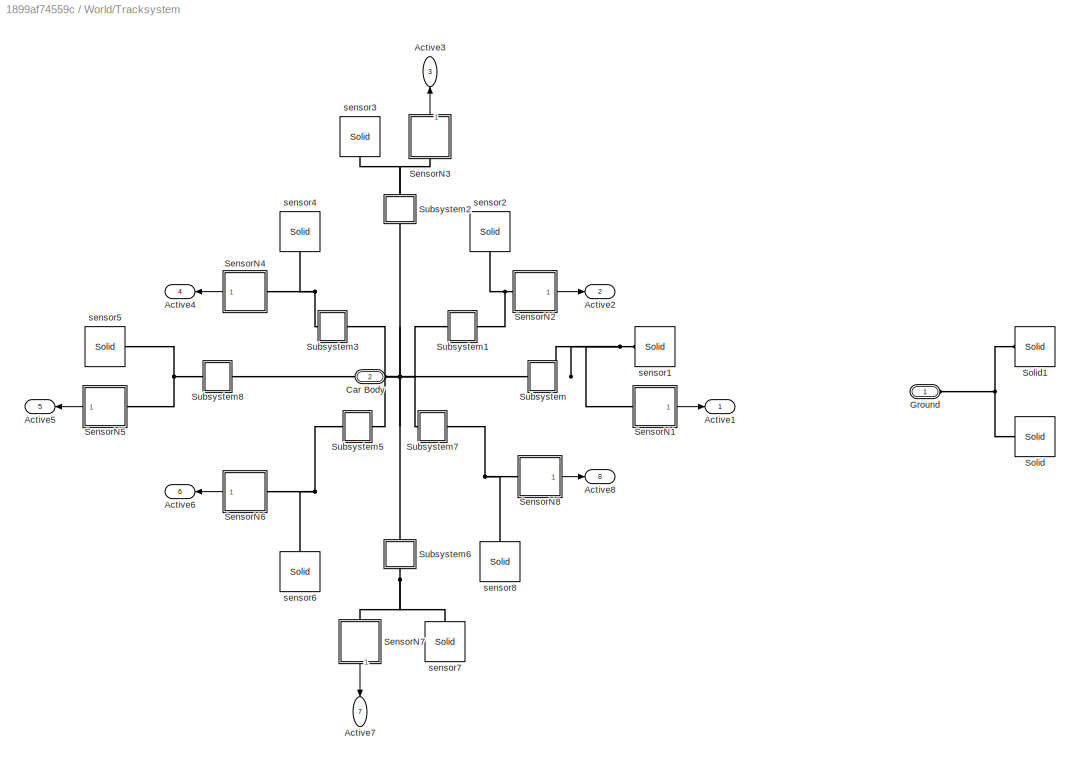
BLOCK [SubSystem] World/Tracksystem
  InitFcn = run bana2
  Ports = [0, 8, 0, 0, 0, 2]
  RequestExecContextInheritance = off
BLOCK [Outport] World/Tracksystem/Active1
  IconDisplay = Port number
BLOCK [Outport] World/Tracksystem/Active2
  IconDisplay = Port number
  Port = 2
BLOCK [Outport] World/Tracksystem/Active3
  IconDisplay = Port number
  Port = 3
BLOCK [Outport] World/Tracksystem/Active4
  IconDisplay = Port number
  Port = 4
BLOCK [Outport] World/Tracksystem/Active5
  IconDisplay = Port number
  Port = 5
BLOCK [Outport] World/Tracksystem/Active6
  IconDisplay = Port number
  Port = 6
BLOCK [Outport] World/Tracksystem/Active7
  IconDisplay = Port number
  Port = 7
BLOCK [Outport] World/Tracksystem/Active8
  IconDisplay = Port number
  Port = 8
BLOCK [PMIOPort] World/Tracksystem/Car Body
  Port = 2
  Side = Left
BLOCK [PMIOPort] World/Tracksystem/Ground
  Side = Left
BLOCK [SubSystem] World/Tracksystem/SensorN1
  Ports = [0, 1, 0, 0, 0, 1]
  RequestExecContextInheritance = off
BLOCK [Outport] World/Tracksystem/SensorN1/Active
  IconDisplay = Port number
BLOCK [PMIOPort] World/Tracksystem/SensorN1/B
  Side = Left
BLOCK [Constant] World/Tracksystem/SensorN1/Constant
  Value = linePath
BLOCK [Constant] World/Tracksystem/SensorN1/Constant1
  Value = thickness
BLOCK [Gain] World/Tracksystem/SensorN1/Gain
  Gain = -1
  OutDataTypeStr = Inherit: Inherit via internal rule
  ParamDataTypeStr = Inherit: Inherit via internal rule
  SaturateOnIntegerOverflow = off
BLOCK [Gain] World/Tracksystem/SensorN1/Gain1
  Gain = -1
  OutDataTypeStr = Inherit: Inherit via internal rule
  ParamDataTypeStr = Inherit: Inherit via internal rule
  SaturateOnIntegerOverflow = off
BLOCK [SubSystem] World/Tracksystem/SensorN1/MATLAB Function2
  ErrorFcn = Stateflow.Translate.translate
  PermitHierarchicalResolution = ExplicitOnly
  Ports = [4, 1]
  RequestExecContextInheritance = off
  SFBlockType = MATLAB Function
  TreatAsAtomicUnit = on
BLOCK [Demux] World/Tracksystem/SensorN1/MATLAB Function2/ Demux 
  Outputs = 1
  Ports = [1, 1]
BLOCK [S-Function] World/Tracksystem/SensorN1/MATLAB Function2/ SFunction 
  EnableBusSupport = on
  FunctionName = sf_sfun
  PortCounts = [4 2]
  Ports = [4, 2]
  SFcnIsStateOwnerBlock = off
  SFunctionDeploymentMode = off
  Tag = Stateflow S-Function model 8
BLOCK [Terminator] World/Tracksystem/SensorN1/MATLAB Function2/ Terminator 
BLOCK [Outport] World/Tracksystem/SensorN1/MATLAB Function2/b
  IconDisplay = Port number
BLOCK [Inport] World/Tracksystem/SensorN1/MATLAB Function2/linePath
  IconDisplay = Port number
  Port = 3
BLOCK [Inport] World/Tracksystem/SensorN1/MATLAB Function2/thickness
  IconDisplay = Port number
  Port = 4
BLOCK [Inport] World/Tracksystem/SensorN1/MATLAB Function2/x
  IconDisplay = Port number
BLOCK [Inport] World/Tracksystem/SensorN1/MATLAB Function2/y
  IconDisplay = Port number
  Port = 2
BLOCK [Reference] World/Tracksystem/SensorN1/PS-Simulink Converter  REF=nesl_utility/PS-Simulink
Converter
  Ports = [0, 1, 0, 0, 0, 1]
  SourceBlock = nesl_utility/PS-Simulink\nConverter
  SourceProductBaseCode = SS
  SourceProductName = Simscape
  SourceType = PS-Simulink\nConverter
BLOCK [Reference] World/Tracksystem/SensorN1/PS-Simulink Converter1  REF=nesl_utility/PS-Simulink
Converter
  Ports = [0, 1, 0, 0, 0, 1]
  SourceBlock = nesl_utility/PS-Simulink\nConverter
  SourceProductBaseCode = SS
  SourceProductName = Simscape
  SourceType = PS-Simulink\nConverter
BLOCK [Scope] World/Tracksystem/SensorN1/Scope
  Floating = off
  NumInputPorts = 2
  Ports = [2]
  ScopeSpecificationString = Simulink.scopes.TimeScopeBlockCfg('CurrentConfiguration', extmgr.ConfigurationSet(extmgr.Configuration('Core','General UI',true),extmgr.Configuration('Core','Source UI',true),extmgr.Configuration('Sources','WiredSimulink',true,'DataLoggingVariableName','ScopeData10'),extmgr.Configuration('Visuals','Time Domain',true,'SerializedDisplays',{struct('MinYLimReal','-0.12948','MaxYLimReal','1.16532','YLa...<+1427ch>
BLOCK [Reference] World/Tracksystem/SensorN1/Transform Sensor  REF=sm_lib/Frames and
Transforms/Transform
Sensor
  Ports = [0, 0, 0, 0, 0, 1, 3]
  SourceBlock = sm_lib/Frames and\nTransforms/Transform\nSensor
  SourceProductBaseCode = MS
  SourceProductName = Simscape Multibody
  SourceType = Transform\nSensor
BLOCK [SubSystem] World/Tracksystem/SensorN2
  Ports = [0, 1, 0, 0, 0, 1]
  RequestExecContextInheritance = off
BLOCK [Outport] World/Tracksystem/SensorN2/Active
  IconDisplay = Port number
BLOCK [PMIOPort] World/Tracksystem/SensorN2/B
  Side = Left
BLOCK [Constant] World/Tracksystem/SensorN2/Constant
  Value = linePath
BLOCK [Constant] World/Tracksystem/SensorN2/Constant1
  Value = thickness
BLOCK [Gain] World/Tracksystem/SensorN2/Gain
  Gain = -1
  OutDataTypeStr = Inherit: Inherit via internal rule
  ParamDataTypeStr = Inherit: Inherit via internal rule
  SaturateOnIntegerOverflow = off
BLOCK [Gain] World/Tracksystem/SensorN2/Gain1
  Gain = -1
  OutDataTypeStr = Inherit: Inherit via internal rule
  ParamDataTypeStr = Inherit: Inherit via internal rule
  SaturateOnIntegerOverflow = off
BLOCK [SubSystem] World/Tracksystem/SensorN2/MATLAB Function2
  ErrorFcn = Stateflow.Translate.translate
  PermitHierarchicalResolution = ExplicitOnly
  Ports = [4, 1]
  RequestExecContextInheritance = off
  SFBlockType = MATLAB Function
  TreatAsAtomicUnit = on
BLOCK [Demux] World/Tracksystem/SensorN2/MATLAB Function2/ Demux 
  Outputs = 1
  Ports = [1, 1]
BLOCK [S-Function] World/Tracksystem/SensorN2/MATLAB Function2/ SFunction 
  EnableBusSupport = on
  FunctionName = sf_sfun
  PortCounts = [4 2]
  Ports = [4, 2]
  SFcnIsStateOwnerBlock = off
  SFunctionDeploymentMode = off
  Tag = Stateflow S-Function model 9
BLOCK [Terminator] World/Tracksystem/SensorN2/MATLAB Function2/ Terminator 
BLOCK [Outport] World/Tracksystem/SensorN2/MATLAB Function2/b
  IconDisplay = Port number
BLOCK [Inport] World/Tracksystem/SensorN2/MATLAB Function2/linePath
  IconDisplay = Port number
  Port = 3
BLOCK [Inport] World/Tracksystem/SensorN2/MATLAB Function2/thickness
  IconDisplay = Port number
  Port = 4
BLOCK [Inport] World/Tracksystem/SensorN2/MATLAB Function2/x
  IconDisplay = Port number
BLOCK [Inport] World/Tracksystem/SensorN2/MATLAB Function2/y
  IconDisplay = Port number
  Port = 2
BLOCK [Reference] World/Tracksystem/SensorN2/PS-Simulink Converter  REF=nesl_utility/PS-Simulink
Converter
  Ports = [0, 1, 0, 0, 0, 1]
  SourceBlock = nesl_utility/PS-Simulink\nConverter
  SourceProductBaseCode = SS
  SourceProductName = Simscape
  SourceType = PS-Simulink\nConverter
BLOCK [Reference] World/Tracksystem/SensorN2/PS-Simulink Converter1  REF=nesl_utility/PS-Simulink
Converter
  Ports = [0, 1, 0, 0, 0, 1]
  SourceBlock = nesl_utility/PS-Simulink\nConverter
  SourceProductBaseCode = SS
  SourceProductName = Simscape
  SourceType = PS-Simulink\nConverter
BLOCK [Scope] World/Tracksystem/SensorN2/Scope
  Floating = off
  NumInputPorts = 2
  Ports = [2]
  ScopeSpecificationString = Simulink.scopes.TimeScopeBlockCfg('CurrentConfiguration', extmgr.ConfigurationSet(extmgr.Configuration('Core','General UI',true),extmgr.Configuration('Core','Source UI',true),extmgr.Configuration('Sources','WiredSimulink',true,'DataLoggingVariableName','ScopeData10'),extmgr.Configuration('Visuals','Time Domain',true,'SerializedDisplays',{struct('MinYLimReal','-0.08787','MaxYLimReal','1.14438','YLa...<+1427ch>
BLOCK [Reference] World/Tracksystem/SensorN2/Transform Sensor  REF=sm_lib/Frames and
Transforms/Transform
Sensor
  Ports = [0, 0, 0, 0, 0, 1, 3]
  SourceBlock = sm_lib/Frames and\nTransforms/Transform\nSensor
  SourceProductBaseCode = MS
  SourceProductName = Simscape Multibody
  SourceType = Transform\nSensor
BLOCK [SubSystem] World/Tracksystem/SensorN3
  Ports = [0, 1, 0, 0, 0, 1]
  RequestExecContextInheritance = off
BLOCK [Outport] World/Tracksystem/SensorN3/Active
  IconDisplay = Port number
BLOCK [PMIOPort] World/Tracksystem/SensorN3/B
  Side = Left
BLOCK [Constant] World/Tracksystem/SensorN3/Constant
  Value = linePath
BLOCK [Constant] World/Tracksystem/SensorN3/Constant1
  Value = thickness
BLOCK [Gain] World/Tracksystem/SensorN3/Gain
  Gain = -1
  OutDataTypeStr = Inherit: Inherit via internal rule
  ParamDataTypeStr = Inherit: Inherit via internal rule
  SaturateOnIntegerOverflow = off
BLOCK [Gain] World/Tracksystem/SensorN3/Gain1
  Gain = -1
  OutDataTypeStr = Inherit: Inherit via internal rule
  ParamDataTypeStr = Inherit: Inherit via internal rule
  SaturateOnIntegerOverflow = off
BLOCK [SubSystem] World/Tracksystem/SensorN3/MATLAB Function2
  ErrorFcn = Stateflow.Translate.translate
  PermitHierarchicalResolution = ExplicitOnly
  Ports = [4, 1]
  RequestExecContextInheritance = off
  SFBlockType = MATLAB Function
  TreatAsAtomicUnit = on
BLOCK [Demux] World/Tracksystem/SensorN3/MATLAB Function2/ Demux 
  Outputs = 1
  Ports = [1, 1]
BLOCK [S-Function] World/Tracksystem/SensorN3/MATLAB Function2/ SFunction 
  EnableBusSupport = on
  FunctionName = sf_sfun
  PortCounts = [4 2]
  Ports = [4, 2]
  SFcnIsStateOwnerBlock = off
  SFunctionDeploymentMode = off
  Tag = Stateflow S-Function model 10
BLOCK [Terminator] World/Tracksystem/SensorN3/MATLAB Function2/ Terminator 
BLOCK [Outport] World/Tracksystem/SensorN3/MATLAB Function2/b
  IconDisplay = Port number
BLOCK [Inport] World/Tracksystem/SensorN3/MATLAB Function2/linePath
  IconDisplay = Port number
  Port = 3
BLOCK [Inport] World/Tracksystem/SensorN3/MATLAB Function2/thickness
  IconDisplay = Port number
  Port = 4
BLOCK [Inport] World/Tracksystem/SensorN3/MATLAB Function2/x
  IconDisplay = Port number
BLOCK [Inport] World/Tracksystem/SensorN3/MATLAB Function2/y
  IconDisplay = Port number
  Port = 2
BLOCK [Reference] World/Tracksystem/SensorN3/PS-Simulink Converter  REF=nesl_utility/PS-Simulink
Converter
  Ports = [0, 1, 0, 0, 0, 1]
  SourceBlock = nesl_utility/PS-Simulink\nConverter
  SourceProductBaseCode = SS
  SourceProductName = Simscape
  SourceType = PS-Simulink\nConverter
BLOCK [Reference] World/Tracksystem/SensorN3/PS-Simulink Converter1  REF=nesl_utility/PS-Simulink
Converter
  Ports = [0, 1, 0, 0, 0, 1]
  SourceBlock = nesl_utility/PS-Simulink\nConverter
  SourceProductBaseCode = SS
  SourceProductName = Simscape
  SourceType = PS-Simulink\nConverter
BLOCK [Scope] World/Tracksystem/SensorN3/Scope
  Floating = off
  NumInputPorts = 2
  Ports = [2]
  ScopeSpecificationString = Simulink.scopes.TimeScopeBlockCfg('CurrentConfiguration', extmgr.ConfigurationSet(extmgr.Configuration('Core','General UI',true),extmgr.Configuration('Core','Source UI',true),extmgr.Configuration('Sources','WiredSimulink',true,'DataLoggingVariableName','ScopeData10'),extmgr.Configuration('Visuals','Time Domain',true,'SerializedDisplays',{struct('MinYLimReal','0.02923','MaxYLimReal','0.09049','YLab...<+1425ch>  <repeated x6 — deduplicated; at blocks: Scope>
BLOCK [Reference] World/Tracksystem/SensorN3/Transform Sensor  REF=sm_lib/Frames and
Transforms/Transform
Sensor
  Ports = [0, 0, 0, 0, 0, 1, 3]
  SourceBlock = sm_lib/Frames and\nTransforms/Transform\nSensor
  SourceProductBaseCode = MS
  SourceProductName = Simscape Multibody
  SourceType = Transform\nSensor
BLOCK [SubSystem] World/Tracksystem/SensorN4
  Ports = [0, 1, 0, 0, 0, 1]
  RequestExecContextInheritance = off
BLOCK [Outport] World/Tracksystem/SensorN4/Active
  IconDisplay = Port number
BLOCK [PMIOPort] World/Tracksystem/SensorN4/B
  Side = Left
BLOCK [Constant] World/Tracksystem/SensorN4/Constant
  Value = linePath
BLOCK [Constant] World/Tracksystem/SensorN4/Constant1
  Value = thickness
BLOCK [Gain] World/Tracksystem/SensorN4/Gain
  Gain = -1
  OutDataTypeStr = Inherit: Inherit via internal rule
  ParamDataTypeStr = Inherit: Inherit via internal rule
  SaturateOnIntegerOverflow = off
BLOCK [Gain] World/Tracksystem/SensorN4/Gain1
  Gain = -1
  OutDataTypeStr = Inherit: Inherit via internal rule
  ParamDataTypeStr = Inherit: Inherit via internal rule
  SaturateOnIntegerOverflow = off
BLOCK [SubSystem] World/Tracksystem/SensorN4/MATLAB Function2
  ErrorFcn = Stateflow.Translate.translate
  PermitHierarchicalResolution = ExplicitOnly
  Ports = [4, 1]
  RequestExecContextInheritance = off
  SFBlockType = MATLAB Function
  TreatAsAtomicUnit = on
BLOCK [Demux] World/Tracksystem/SensorN4/MATLAB Function2/ Demux 
  Outputs = 1
  Ports = [1, 1]
BLOCK [S-Function] World/Tracksystem/SensorN4/MATLAB Function2/ SFunction 
  EnableBusSupport = on
  FunctionName = sf_sfun
  PortCounts = [4 2]
  Ports = [4, 2]
  SFcnIsStateOwnerBlock = off
  SFunctionDeploymentMode = off
  Tag = Stateflow S-Function model 11
BLOCK [Terminator] World/Tracksystem/SensorN4/MATLAB Function2/ Terminator 
BLOCK [Outport] World/Tracksystem/SensorN4/MATLAB Function2/b
  IconDisplay = Port number
BLOCK [Inport] World/Tracksystem/SensorN4/MATLAB Function2/linePath
  IconDisplay = Port number
  Port = 3
BLOCK [Inport] World/Tracksystem/SensorN4/MATLAB Function2/thickness
  IconDisplay = Port number
  Port = 4
BLOCK [Inport] World/Tracksystem/SensorN4/MATLAB Function2/x
  IconDisplay = Port number
BLOCK [Inport] World/Tracksystem/SensorN4/MATLAB Function2/y
  IconDisplay = Port number
  Port = 2
BLOCK [Reference] World/Tracksystem/SensorN4/PS-Simulink Converter  REF=nesl_utility/PS-Simulink
Converter
  Ports = [0, 1, 0, 0, 0, 1]
  SourceBlock = nesl_utility/PS-Simulink\nConverter
  SourceProductBaseCode = SS
  SourceProductName = Simscape
  SourceType = PS-Simulink\nConverter
BLOCK [Reference] World/Tracksystem/SensorN4/PS-Simulink Converter1  REF=nesl_utility/PS-Simulink
Converter
  Ports = [0, 1, 0, 0, 0, 1]
  SourceBlock = nesl_utility/PS-Simulink\nConverter
  SourceProductBaseCode = SS
  SourceProductName = Simscape
  SourceType = PS-Simulink\nConverter
BLOCK [Scope] World/Tracksystem/SensorN4/Scope
  Floating = off
  NumInputPorts = 2
  Ports = [2]
BLOCK [Reference] World/Tracksystem/SensorN4/Transform Sensor  REF=sm_lib/Frames and
Transforms/Transform
Sensor
  Ports = [0, 0, 0, 0, 0, 1, 3]
  SourceBlock = sm_lib/Frames and\nTransforms/Transform\nSensor
  SourceProductBaseCode = MS
  SourceProductName = Simscape Multibody
  SourceType = Transform\nSensor
BLOCK [SubSystem] World/Tracksystem/SensorN5
  Ports = [0, 1, 0, 0, 0, 1]
  RequestExecContextInheritance = off
BLOCK [Outport] World/Tracksystem/SensorN5/Active
  IconDisplay = Port number
BLOCK [PMIOPort] World/Tracksystem/SensorN5/B
  Side = Left
BLOCK [Constant] World/Tracksystem/SensorN5/Constant
  Value = linePath
BLOCK [Constant] World/Tracksystem/SensorN5/Constant1
  Value = thickness
BLOCK [Gain] World/Tracksystem/SensorN5/Gain
  Gain = -1
  OutDataTypeStr = Inherit: Inherit via internal rule
  ParamDataTypeStr = Inherit: Inherit via internal rule
  SaturateOnIntegerOverflow = off
BLOCK [Gain] World/Tracksystem/SensorN5/Gain1
  Gain = -1
  OutDataTypeStr = Inherit: Inherit via internal rule
  ParamDataTypeStr = Inherit: Inherit via internal rule
  SaturateOnIntegerOverflow = off
BLOCK [SubSystem] World/Tracksystem/SensorN5/MATLAB Function2
  ErrorFcn = Stateflow.Translate.translate
  PermitHierarchicalResolution = ExplicitOnly
  Ports = [4, 1]
  RequestExecContextInheritance = off
  SFBlockType = MATLAB Function
  TreatAsAtomicUnit = on
BLOCK [Demux] World/Tracksystem/SensorN5/MATLAB Function2/ Demux 
  Outputs = 1
  Ports = [1, 1]
BLOCK [S-Function] World/Tracksystem/SensorN5/MATLAB Function2/ SFunction 
  EnableBusSupport = on
  FunctionName = sf_sfun
  PortCounts = [4 2]
  Ports = [4, 2]
  SFcnIsStateOwnerBlock = off
  SFunctionDeploymentMode = off
  Tag = Stateflow S-Function model 13
BLOCK [Terminator] World/Tracksystem/SensorN5/MATLAB Function2/ Terminator 
BLOCK [Outport] World/Tracksystem/SensorN5/MATLAB Function2/b
  IconDisplay = Port number
BLOCK [Inport] World/Tracksystem/SensorN5/MATLAB Function2/linePath
  IconDisplay = Port number
  Port = 3
BLOCK [Inport] World/Tracksystem/SensorN5/MATLAB Function2/thickness
  IconDisplay = Port number
  Port = 4
BLOCK [Inport] World/Tracksystem/SensorN5/MATLAB Function2/x
  IconDisplay = Port number
BLOCK [Inport] World/Tracksystem/SensorN5/MATLAB Function2/y
  IconDisplay = Port number
  Port = 2
BLOCK [Reference] World/Tracksystem/SensorN5/PS-Simulink Converter  REF=nesl_utility/PS-Simulink
Converter
  Ports = [0, 1, 0, 0, 0, 1]
  SourceBlock = nesl_utility/PS-Simulink\nConverter
  SourceProductBaseCode = SS
  SourceProductName = Simscape
  SourceType = PS-Simulink\nConverter
BLOCK [Reference] World/Tracksystem/SensorN5/PS-Simulink Converter1  REF=nesl_utility/PS-Simulink
Converter
  Ports = [0, 1, 0, 0, 0, 1]
  SourceBlock = nesl_utility/PS-Simulink\nConverter
  SourceProductBaseCode = SS
  SourceProductName = Simscape
  SourceType = PS-Simulink\nConverter
BLOCK [Scope] World/Tracksystem/SensorN5/Scope
  Floating = off
  NumInputPorts = 2
  Ports = [2]
BLOCK [Reference] World/Tracksystem/SensorN5/Transform Sensor  REF=sm_lib/Frames and
Transforms/Transform
Sensor
  Ports = [0, 0, 0, 0, 0, 1, 3]
  SourceBlock = sm_lib/Frames and\nTransforms/Transform\nSensor
  SourceProductBaseCode = MS
  SourceProductName = Simscape Multibody
  SourceType = Transform\nSensor
BLOCK [SubSystem] World/Tracksystem/SensorN6
  Ports = [0, 1, 0, 0, 0, 1]
  RequestExecContextInheritance = off
BLOCK [Outport] World/Tracksystem/SensorN6/Active
  IconDisplay = Port number
BLOCK [PMIOPort] World/Tracksystem/SensorN6/B
  Side = Left
BLOCK [Constant] World/Tracksystem/SensorN6/Constant
  Value = linePath
BLOCK [Constant] World/Tracksystem/SensorN6/Constant1
  Value = thickness
BLOCK [Gain] World/Tracksystem/SensorN6/Gain
  Gain = -1
  OutDataTypeStr = Inherit: Inherit via internal rule
  ParamDataTypeStr = Inherit: Inherit via internal rule
  SaturateOnIntegerOverflow = off
BLOCK [Gain] World/Tracksystem/SensorN6/Gain1
  Gain = -1
  OutDataTypeStr = Inherit: Inherit via internal rule
  ParamDataTypeStr = Inherit: Inherit via internal rule
  SaturateOnIntegerOverflow = off
BLOCK [SubSystem] World/Tracksystem/SensorN6/MATLAB Function2
  ErrorFcn = Stateflow.Translate.translate
  PermitHierarchicalResolution = ExplicitOnly
  Ports = [4, 1]
  RequestExecContextInheritance = off
  SFBlockType = MATLAB Function
  TreatAsAtomicUnit = on
BLOCK [Demux] World/Tracksystem/SensorN6/MATLAB Function2/ Demux 
  Outputs = 1
  Ports = [1, 1]
BLOCK [S-Function] World/Tracksystem/SensorN6/MATLAB Function2/ SFunction 
  EnableBusSupport = on
  FunctionName = sf_sfun
  PortCounts = [4 2]
  Ports = [4, 2]
  SFcnIsStateOwnerBlock = off
  SFunctionDeploymentMode = off
  Tag = Stateflow S-Function model 16
BLOCK [Terminator] World/Tracksystem/SensorN6/MATLAB Function2/ Terminator 
BLOCK [Outport] World/Tracksystem/SensorN6/MATLAB Function2/b
  IconDisplay = Port number
BLOCK [Inport] World/Tracksystem/SensorN6/MATLAB Function2/linePath
  IconDisplay = Port number
  Port = 3
BLOCK [Inport] World/Tracksystem/SensorN6/MATLAB Function2/thickness
  IconDisplay = Port number
  Port = 4
BLOCK [Inport] World/Tracksystem/SensorN6/MATLAB Function2/x
  IconDisplay = Port number
BLOCK [Inport] World/Tracksystem/SensorN6/MATLAB Function2/y
  IconDisplay = Port number
  Port = 2
BLOCK [Reference] World/Tracksystem/SensorN6/PS-Simulink Converter  REF=nesl_utility/PS-Simulink
Converter
  Ports = [0, 1, 0, 0, 0, 1]
  SourceBlock = nesl_utility/PS-Simulink\nConverter
  SourceProductBaseCode = SS
  SourceProductName = Simscape
  SourceType = PS-Simulink\nConverter
BLOCK [Reference] World/Tracksystem/SensorN6/PS-Simulink Converter1  REF=nesl_utility/PS-Simulink
Converter
  Ports = [0, 1, 0, 0, 0, 1]
  SourceBlock = nesl_utility/PS-Simulink\nConverter
  SourceProductBaseCode = SS
  SourceProductName = Simscape
  SourceType = PS-Simulink\nConverter
BLOCK [Scope] World/Tracksystem/SensorN6/Scope
  Floating = off
  NumInputPorts = 2
  Ports = [2]
BLOCK [Reference] World/Tracksystem/SensorN6/Transform Sensor  REF=sm_lib/Frames and
Transforms/Transform
Sensor
  Ports = [0, 0, 0, 0, 0, 1, 3]
  SourceBlock = sm_lib/Frames and\nTransforms/Transform\nSensor
  SourceProductBaseCode = MS
  SourceProductName = Simscape Multibody
  SourceType = Transform\nSensor
BLOCK [SubSystem] World/Tracksystem/SensorN7
  Ports = [0, 1, 0, 0, 0, 1]
  RequestExecContextInheritance = off
BLOCK [Outport] World/Tracksystem/SensorN7/Active
  IconDisplay = Port number
BLOCK [PMIOPort] World/Tracksystem/SensorN7/B
  Side = Left
BLOCK [Constant] World/Tracksystem/SensorN7/Constant
  Value = linePath
BLOCK [Constant] World/Tracksystem/SensorN7/Constant1
  Value = thickness
BLOCK [Gain] World/Tracksystem/SensorN7/Gain
  Gain = -1
  OutDataTypeStr = Inherit: Inherit via internal rule
  ParamDataTypeStr = Inherit: Inherit via internal rule
  SaturateOnIntegerOverflow = off
BLOCK [Gain] World/Tracksystem/SensorN7/Gain1
  Gain = -1
  OutDataTypeStr = Inherit: Inherit via internal rule
  ParamDataTypeStr = Inherit: Inherit via internal rule
  SaturateOnIntegerOverflow = off
BLOCK [SubSystem] World/Tracksystem/SensorN7/MATLAB Function2
  ErrorFcn = Stateflow.Translate.translate
  PermitHierarchicalResolution = ExplicitOnly
  Ports = [4, 1]
  RequestExecContextInheritance = off
  SFBlockType = MATLAB Function
  TreatAsAtomicUnit = on
BLOCK [Demux] World/Tracksystem/SensorN7/MATLAB Function2/ Demux 
  Outputs = 1
  Ports = [1, 1]
BLOCK [S-Function] World/Tracksystem/SensorN7/MATLAB Function2/ SFunction 
  EnableBusSupport = on
  FunctionName = sf_sfun
  PortCounts = [4 2]
  Ports = [4, 2]
  SFcnIsStateOwnerBlock = off
  SFunctionDeploymentMode = off
  Tag = Stateflow S-Function model 12
BLOCK [Terminator] World/Tracksystem/SensorN7/MATLAB Function2/ Terminator 
BLOCK [Outport] World/Tracksystem/SensorN7/MATLAB Function2/b
  IconDisplay = Port number
BLOCK [Inport] World/Tracksystem/SensorN7/MATLAB Function2/linePath
  IconDisplay = Port number
  Port = 3
BLOCK [Inport] World/Tracksystem/SensorN7/MATLAB Function2/thickness
  IconDisplay = Port number
  Port = 4
BLOCK [Inport] World/Tracksystem/SensorN7/MATLAB Function2/x
  IconDisplay = Port number
BLOCK [Inport] World/Tracksystem/SensorN7/MATLAB Function2/y
  IconDisplay = Port number
  Port = 2
BLOCK [Reference] World/Tracksystem/SensorN7/PS-Simulink Converter  REF=nesl_utility/PS-Simulink
Converter
  Ports = [0, 1, 0, 0, 0, 1]
  SourceBlock = nesl_utility/PS-Simulink\nConverter
  SourceProductBaseCode = SS
  SourceProductName = Simscape
  SourceType = PS-Simulink\nConverter
BLOCK [Reference] World/Tracksystem/SensorN7/PS-Simulink Converter1  REF=nesl_utility/PS-Simulink
Converter
  Ports = [0, 1, 0, 0, 0, 1]
  SourceBlock = nesl_utility/PS-Simulink\nConverter
  SourceProductBaseCode = SS
  SourceProductName = Simscape
  SourceType = PS-Simulink\nConverter
BLOCK [Scope] World/Tracksystem/SensorN7/Scope
  Floating = off
  NumInputPorts = 2
  Ports = [2]
BLOCK [Reference] World/Tracksystem/SensorN7/Transform Sensor  REF=sm_lib/Frames and
Transforms/Transform
Sensor
  Ports = [0, 0, 0, 0, 0, 1, 3]
  SourceBlock = sm_lib/Frames and\nTransforms/Transform\nSensor
  SourceProductBaseCode = MS
  SourceProductName = Simscape Multibody
  SourceType = Transform\nSensor
BLOCK [SubSystem] World/Tracksystem/SensorN8
  Ports = [0, 1, 0, 0, 0, 1]
  RequestExecContextInheritance = off
BLOCK [Outport] World/Tracksystem/SensorN8/Active
  IconDisplay = Port number
BLOCK [PMIOPort] World/Tracksystem/SensorN8/B
  Side = Left
BLOCK [Constant] World/Tracksystem/SensorN8/Constant
  Value = linePath
BLOCK [Constant] World/Tracksystem/SensorN8/Constant1
  Value = thickness
BLOCK [Gain] World/Tracksystem/SensorN8/Gain
  Gain = -1
  OutDataTypeStr = Inherit: Inherit via internal rule
  ParamDataTypeStr = Inherit: Inherit via internal rule
  SaturateOnIntegerOverflow = off
BLOCK [Gain] World/Tracksystem/SensorN8/Gain1
  Gain = -1
  OutDataTypeStr = Inherit: Inherit via internal rule
  ParamDataTypeStr = Inherit: Inherit via internal rule
  SaturateOnIntegerOverflow = off
BLOCK [SubSystem] World/Tracksystem/SensorN8/MATLAB Function2
  ErrorFcn = Stateflow.Translate.translate
  PermitHierarchicalResolution = ExplicitOnly
  Ports = [4, 1]
  RequestExecContextInheritance = off
  SFBlockType = MATLAB Function
  TreatAsAtomicUnit = on
BLOCK [Demux] World/Tracksystem/SensorN8/MATLAB Function2/ Demux 
  Outputs = 1
  Ports = [1, 1]
BLOCK [S-Function] World/Tracksystem/SensorN8/MATLAB Function2/ SFunction 
  EnableBusSupport = on
  FunctionName = sf_sfun
  PortCounts = [4 2]
  Ports = [4, 2]
  SFcnIsStateOwnerBlock = off
  SFunctionDeploymentMode = off
  Tag = Stateflow S-Function model 14
BLOCK [Terminator] World/Tracksystem/SensorN8/MATLAB Function2/ Terminator 
BLOCK [Outport] World/Tracksystem/SensorN8/MATLAB Function2/b
  IconDisplay = Port number
BLOCK [Inport] World/Tracksystem/SensorN8/MATLAB Function2/linePath
  IconDisplay = Port number
  Port = 3
BLOCK [Inport] World/Tracksystem/SensorN8/MATLAB Function2/thickness
  IconDisplay = Port number
  Port = 4
BLOCK [Inport] World/Tracksystem/SensorN8/MATLAB Function2/x
  IconDisplay = Port number
BLOCK [Inport] World/Tracksystem/SensorN8/MATLAB Function2/y
  IconDisplay = Port number
  Port = 2
BLOCK [Reference] World/Tracksystem/SensorN8/PS-Simulink Converter  REF=nesl_utility/PS-Simulink
Converter
  Ports = [0, 1, 0, 0, 0, 1]
  SourceBlock = nesl_utility/PS-Simulink\nConverter
  SourceProductBaseCode = SS
  SourceProductName = Simscape
  SourceType = PS-Simulink\nConverter
BLOCK [Reference] World/Tracksystem/SensorN8/PS-Simulink Converter1  REF=nesl_utility/PS-Simulink
Converter
  Ports = [0, 1, 0, 0, 0, 1]
  SourceBlock = nesl_utility/PS-Simulink\nConverter
  SourceProductBaseCode = SS
  SourceProductName = Simscape
  SourceType = PS-Simulink\nConverter
BLOCK [Scope] World/Tracksystem/SensorN8/Scope
  Floating = off
  NumInputPorts = 2
  Ports = [2]
BLOCK [Reference] World/Tracksystem/SensorN8/Transform Sensor  REF=sm_lib/Frames and
Transforms/Transform
Sensor
  Ports = [0, 0, 0, 0, 0, 1, 3]
  SourceBlock = sm_lib/Frames and\nTransforms/Transform\nSensor
  SourceProductBaseCode = MS
  SourceProductName = Simscape Multibody
  SourceType = Transform\nSensor
BLOCK [Reference] World/Tracksystem/Solid  REF=sm_lib/Body Elements/Solid
  Ports = [0, 0, 0, 0, 0, 0, 1]
  SourceBlock = sm_lib/Body Elements/Solid
  SourceProductBaseCode = MS
  SourceProductName = Simscape Multibody
  SourceType = Solid
BLOCK [Reference] World/Tracksystem/Solid1  REF=sm_lib/Body Elements/Solid
  Ports = [0, 0, 0, 0, 0, 0, 1]
  SourceBlock = sm_lib/Body Elements/Solid
  SourceProductBaseCode = MS
  SourceProductName = Simscape Multibody
  SourceType = Solid
BLOCK [SubSystem] World/Tracksystem/Subsystem
  Ports = [0, 0, 0, 0, 0, 1, 1]
  RequestExecContextInheritance = off
BLOCK [PMIOPort] World/Tracksystem/Subsystem/B
  Side = Left
BLOCK [PMIOPort] World/Tracksystem/Subsystem/F
  Port = 2
  Side = Right
BLOCK [Reference] World/Tracksystem/Subsystem/sensorDownkord  REF=sm_lib/Frames and
Transforms/Rigid
Transform
  Ports = [0, 0, 0, 0, 0, 1, 1]
  SourceBlock = sm_lib/Frames and\nTransforms/Rigid\nTransform
  SourceProductBaseCode = MS
  SourceProductName = Simscape Multibody
  SourceType = Rigid\nTransform
BLOCK [Reference] World/Tracksystem/Subsystem/sensorDownkord8  REF=sm_lib/Frames and
Transforms/Rigid
Transform
  Ports = [0, 0, 0, 0, 0, 1, 1]
  SourceBlock = sm_lib/Frames and\nTransforms/Rigid\nTransform
  SourceProductBaseCode = MS
  SourceProductName = Simscape Multibody
  SourceType = Rigid\nTransform
BLOCK [SubSystem] World/Tracksystem/Subsystem1
  Ports = [0, 0, 0, 0, 0, 1, 1]
  RequestExecContextInheritance = off
BLOCK [PMIOPort] World/Tracksystem/Subsystem1/B
  Side = Left
BLOCK [PMIOPort] World/Tracksystem/Subsystem1/F
  Port = 2
  Side = Right
BLOCK [Reference] World/Tracksystem/Subsystem1/sensorDownkord  REF=sm_lib/Frames and
Transforms/Rigid
Transform
  Ports = [0, 0, 0, 0, 0, 1, 1]
  SourceBlock = sm_lib/Frames and\nTransforms/Rigid\nTransform
  SourceProductBaseCode = MS
  SourceProductName = Simscape Multibody
  SourceType = Rigid\nTransform
BLOCK [Reference] World/Tracksystem/Subsystem1/sensorDownkord8  REF=sm_lib/Frames and
Transforms/Rigid
Transform
  Ports = [0, 0, 0, 0, 0, 1, 1]
  SourceBlock = sm_lib/Frames and\nTransforms/Rigid\nTransform
  SourceProductBaseCode = MS
  SourceProductName = Simscape Multibody
  SourceType = Rigid\nTransform
BLOCK [SubSystem] World/Tracksystem/Subsystem2
  Ports = [0, 0, 0, 0, 0, 1, 1]
  RequestExecContextInheritance = off
BLOCK [PMIOPort] World/Tracksystem/Subsystem2/B
  Side = Left
BLOCK [PMIOPort] World/Tracksystem/Subsystem2/F
  Port = 2
  Side = Right
BLOCK [Reference] World/Tracksystem/Subsystem2/sensorDownkord  REF=sm_lib/Frames and
Transforms/Rigid
Transform
  Ports = [0, 0, 0, 0, 0, 1, 1]
  SourceBlock = sm_lib/Frames and\nTransforms/Rigid\nTransform
  SourceProductBaseCode = MS
  SourceProductName = Simscape Multibody
  SourceType = Rigid\nTransform
BLOCK [Reference] World/Tracksystem/Subsystem2/sensorDownkord8  REF=sm_lib/Frames and
Transforms/Rigid
Transform
  Ports = [0, 0, 0, 0, 0, 1, 1]
  SourceBlock = sm_lib/Frames and\nTransforms/Rigid\nTransform
  SourceProductBaseCode = MS
  SourceProductName = Simscape Multibody
  SourceType = Rigid\nTransform
BLOCK [SubSystem] World/Tracksystem/Subsystem3
  Ports = [0, 0, 0, 0, 0, 1, 1]
  RequestExecContextInheritance = off
BLOCK [PMIOPort] World/Tracksystem/Subsystem3/B
  Side = Left
BLOCK [PMIOPort] World/Tracksystem/Subsystem3/F
  Port = 2
  Side = Right
BLOCK [Reference] World/Tracksystem/Subsystem3/sensorDownkord  REF=sm_lib/Frames and
Transforms/Rigid
Transform
  Ports = [0, 0, 0, 0, 0, 1, 1]
  SourceBlock = sm_lib/Frames and\nTransforms/Rigid\nTransform
  SourceProductBaseCode = MS
  SourceProductName = Simscape Multibody
  SourceType = Rigid\nTransform
BLOCK [Reference] World/Tracksystem/Subsystem3/sensorDownkord8  REF=sm_lib/Frames and
Transforms/Rigid
Transform
  Ports = [0, 0, 0, 0, 0, 1, 1]
  SourceBlock = sm_lib/Frames and\nTransforms/Rigid\nTransform
  SourceProductBaseCode = MS
  SourceProductName = Simscape Multibody
  SourceType = Rigid\nTransform
BLOCK [SubSystem] World/Tracksystem/Subsystem5
  Ports = [0, 0, 0, 0, 0, 1, 1]
  RequestExecContextInheritance = off
BLOCK [PMIOPort] World/Tracksystem/Subsystem5/B
  Side = Left
BLOCK [PMIOPort] World/Tracksystem/Subsystem5/F
  Port = 2
  Side = Right
BLOCK [Reference] World/Tracksystem/Subsystem5/sensorDownkord  REF=sm_lib/Frames and
Transforms/Rigid
Transform
  Ports = [0, 0, 0, 0, 0, 1, 1]
  SourceBlock = sm_lib/Frames and\nTransforms/Rigid\nTransform
  SourceProductBaseCode = MS
  SourceProductName = Simscape Multibody
  SourceType = Rigid\nTransform
BLOCK [Reference] World/Tracksystem/Subsystem5/sensorDownkord8  REF=sm_lib/Frames and
Transforms/Rigid
Transform
  Ports = [0, 0, 0, 0, 0, 1, 1]
  SourceBlock = sm_lib/Frames and\nTransforms/Rigid\nTransform
  SourceProductBaseCode = MS
  SourceProductName = Simscape Multibody
  SourceType = Rigid\nTransform
BLOCK [SubSystem] World/Tracksystem/Subsystem6
  Ports = [0, 0, 0, 0, 0, 1, 1]
  RequestExecContextInheritance = off
BLOCK [PMIOPort] World/Tracksystem/Subsystem6/B
  Side = Left
BLOCK [PMIOPort] World/Tracksystem/Subsystem6/F
  Port = 2
  Side = Right
BLOCK [Reference] World/Tracksystem/Subsystem6/sensorDownkord  REF=sm_lib/Frames and
Transforms/Rigid
Transform
  Ports = [0, 0, 0, 0, 0, 1, 1]
  SourceBlock = sm_lib/Frames and\nTransforms/Rigid\nTransform
  SourceProductBaseCode = MS
  SourceProductName = Simscape Multibody
  SourceType = Rigid\nTransform
BLOCK [Reference] World/Tracksystem/Subsystem6/sensorDownkord8  REF=sm_lib/Frames and
Transforms/Rigid
Transform
  Ports = [0, 0, 0, 0, 0, 1, 1]
  SourceBlock = sm_lib/Frames and\nTransforms/Rigid\nTransform
  SourceProductBaseCode = MS
  SourceProductName = Simscape Multibody
  SourceType = Rigid\nTransform
BLOCK [SubSystem] World/Tracksystem/Subsystem7
  Ports = [0, 0, 0, 0, 0, 1, 1]
  RequestExecContextInheritance = off
BLOCK [PMIOPort] World/Tracksystem/Subsystem7/B
  Side = Left
BLOCK [PMIOPort] World/Tracksystem/Subsystem7/F
  Port = 2
  Side = Right
BLOCK [Reference] World/Tracksystem/Subsystem7/sensorDownkord  REF=sm_lib/Frames and
Transforms/Rigid
Transform
  Ports = [0, 0, 0, 0, 0, 1, 1]
  SourceBlock = sm_lib/Frames and\nTransforms/Rigid\nTransform
  SourceProductBaseCode = MS
  SourceProductName = Simscape Multibody
  SourceType = Rigid\nTransform
BLOCK [Reference] World/Tracksystem/Subsystem7/sensorDownkord8  REF=sm_lib/Frames and
Transforms/Rigid
Transform
  Ports = [0, 0, 0, 0, 0, 1, 1]
  SourceBlock = sm_lib/Frames and\nTransforms/Rigid\nTransform
  SourceProductBaseCode = MS
  SourceProductName = Simscape Multibody
  SourceType = Rigid\nTransform
BLOCK [SubSystem] World/Tracksystem/Subsystem8
  Ports = [0, 0, 0, 0, 0, 1, 1]
  RequestExecContextInheritance = off
BLOCK [PMIOPort] World/Tracksystem/Subsystem8/B
  Side = Left
BLOCK [PMIOPort] World/Tracksystem/Subsystem8/F
  Port = 2
  Side = Right
BLOCK [Reference] World/Tracksystem/Subsystem8/sensorDownkord  REF=sm_lib/Frames and
Transforms/Rigid
Transform
  Ports = [0, 0, 0, 0, 0, 1, 1]
  SourceBlock = sm_lib/Frames and\nTransforms/Rigid\nTransform
  SourceProductBaseCode = MS
  SourceProductName = Simscape Multibody
  SourceType = Rigid\nTransform
BLOCK [Reference] World/Tracksystem/Subsystem8/sensorDownkord8  REF=sm_lib/Frames and
Transforms/Rigid
Transform
  Ports = [0, 0, 0, 0, 0, 1, 1]
  SourceBlock = sm_lib/Frames and\nTransforms/Rigid\nTransform
  SourceProductBaseCode = MS
  SourceProductName = Simscape Multibody
  SourceType = Rigid\nTransform
BLOCK [Reference] World/Tracksystem/sensor1  REF=sm_lib/Body Elements/Solid
  Ports = [0, 0, 0, 0, 0, 0, 1]
  SourceBlock = sm_lib/Body Elements/Solid
  SourceProductBaseCode = MS
  SourceProductName = Simscape Multibody
  SourceType = Solid
BLOCK [Reference] World/Tracksystem/sensor2  REF=sm_lib/Body Elements/Solid
  Ports = [0, 0, 0, 0, 0, 0, 1]
  SourceBlock = sm_lib/Body Elements/Solid
  SourceProductBaseCode = MS
  SourceProductName = Simscape Multibody
  SourceType = Solid
BLOCK [Reference] World/Tracksystem/sensor3  REF=sm_lib/Body Elements/Solid
  Ports = [0, 0, 0, 0, 0, 0, 1]
  SourceBlock = sm_lib/Body Elements/Solid
  SourceProductBaseCode = MS
  SourceProductName = Simscape Multibody
  SourceType = Solid
BLOCK [Reference] World/Tracksystem/sensor4  REF=sm_lib/Body Elements/Solid
  Ports = [0, 0, 0, 0, 0, 0, 1]
  SourceBlock = sm_lib/Body Elements/Solid
  SourceProductBaseCode = MS
  SourceProductName = Simscape Multibody
  SourceType = Solid
BLOCK [Reference] World/Tracksystem/sensor5  REF=sm_lib/Body Elements/Solid
  Ports = [0, 0, 0, 0, 0, 0, 1]
  SourceBlock = sm_lib/Body Elements/Solid
  SourceProductBaseCode = MS
  SourceProductName = Simscape Multibody
  SourceType = Solid
BLOCK [Reference] World/Tracksystem/sensor6  REF=sm_lib/Body Elements/Solid
  Ports = [0, 0, 0, 0, 0, 0, 1]
  SourceBlock = sm_lib/Body Elements/Solid
  SourceProductBaseCode = MS
  SourceProductName = Simscape Multibody
  SourceType = Solid
BLOCK [Reference] World/Tracksystem/sensor7  REF=sm_lib/Body Elements/Solid
  Ports = [0, 0, 0, 0, 0, 0, 1]
  SourceBlock = sm_lib/Body Elements/Solid
  SourceProductBaseCode = MS
  SourceProductName = Simscape Multibody
  SourceType = Solid
BLOCK [Reference] World/Tracksystem/sensor8  REF=sm_lib/Body Elements/Solid
  Ports = [0, 0, 0, 0, 0, 0, 1]
  SourceBlock = sm_lib/Body Elements/Solid
  SourceProductBaseCode = MS
  SourceProductName = Simscape Multibody
  SourceType = Solid
BLOCK [Concatenate] World/Vector Concatenate
  NumInputs = 8
  Ports = [8, 1]
BLOCK [Concatenate] World/Vector Concatenate1
  Ports = [2, 1]
LINE World/Abs vector1:1 -> World/Scope2:2
LINE World/Abs vector:1 -> World/Scope2:1
NET World/Add1:1 -> World/Scope:1, World/Subtract:1
LINE World/Add2:1 -> World/Scope3:1
LINE World/Add3:1 -> World/Gain5:1
LINE World/Add4:1 -> World/Gain7:1
LINE World/Add:1 -> World/Gain6:1
LINE World/Axis Rotater/Angle:1 -> World/Axis Rotater/MATLAB Function:1
LINE World/Axis Rotater/MATLAB Function:1 -> World/Axis Rotater/Transform Matrix:1
NET World/Axis Rotater:1 -> World/Multiply1:1, World/Multiply2:1
LINE World/Band-Limited White Noise1:1 -> World/Add:2
LINE World/Band-Limited White Noise2:1 -> World/Add4:2
LINE World/Band-Limited White Noise:1 -> World/Add3:2
LINE World/Car/Anglemeter/Add:1 -> World/Car/Anglemeter/Mod:1
LINE World/Car/Anglemeter/Constant1:1 -> World/Car/Anglemeter/Degrees to Radians:1
LINE World/Car/Anglemeter/Constant:1 -> World/Car/Anglemeter/Mod:2
LINE World/Car/Anglemeter/Degrees to Radians:1 -> World/Car/Anglemeter/Add:1
LINE World/Car/Anglemeter/Gain1:1 -> World/Car/Anglemeter/Integrator:1
LINE World/Car/Anglemeter/Integrator:1 -> World/Car/Anglemeter/Add:2
LINE World/Car/Anglemeter/Mod:1 -> World/Car/Anglemeter/Angle:1
LINE World/Car/Anglemeter/PS-Simulink Converter2:1 -> World/Car/Anglemeter/Gain1:1
LINE World/Car/Anglemeter:1 -> World/Car/Angle:1
LINE World/Car/Sim STOPPER/Compare To Constant:1 -> World/Car/Sim STOPPER/Stop Simulation:1
NET World/Car/Sim STOPPER/PS-Simulink Converter:1 -> World/Car/Sim STOPPER/Compare To Constant:1, World/Car/Sim STOPPER/Scope:1
LINE World/Car/Wheel Model 1/Constant:1 -> World/Car/Wheel Model 1/Vector Concatenate:2
LINE World/Car/Wheel Model 1/MATLAB Function:1 -> World/Car/Wheel Model 1/Vector Concatenate:1
LINE World/Car/Wheel Model 1/Max Torque:1 -> World/Car/Wheel Model 1/MATLAB Function:2
LINE World/Car/Wheel Model 1/Torque:1 -> World/Car/Wheel Model 1/MATLAB Function:1
LINE World/Car/Wheel Model 1/Vector Concatenate:1 -> World/Car/Wheel Model 1/Simulink-PS Converter2:1
LINE World/Car/Wheel Model 2/Constant:1 -> World/Car/Wheel Model 2/Vector Concatenate:2
LINE World/Car/Wheel Model 2/MATLAB Function:1 -> World/Car/Wheel Model 2/Vector Concatenate:1
LINE World/Car/Wheel Model 2/Max Torque:1 -> World/Car/Wheel Model 2/MATLAB Function:2
LINE World/Car/Wheel Model 2/Torque:1 -> World/Car/Wheel Model 2/MATLAB Function:1
LINE World/Car/Wheel Model 2/Vector Concatenate:1 -> World/Car/Wheel Model 2/Simulink-PS Converter2:1
LINE World/Car/Wheel Model 3/Constant:1 -> World/Car/Wheel Model 3/Vector Concatenate:2
LINE World/Car/Wheel Model 3/MATLAB Function:1 -> World/Car/Wheel Model 3/Vector Concatenate:1
LINE World/Car/Wheel Model 3/Max Torque:1 -> World/Car/Wheel Model 3/MATLAB Function:2
LINE World/Car/Wheel Model 3/Torque:1 -> World/Car/Wheel Model 3/MATLAB Function:1
LINE World/Car/Wheel Model 3/Vector Concatenate:1 -> World/Car/Wheel Model 3/Simulink-PS Converter2:1
LINE World/Car/Wheel Model 4/Constant:1 -> World/Car/Wheel Model 4/Vector Concatenate:2
LINE World/Car/Wheel Model 4/MATLAB Function:1 -> World/Car/Wheel Model 4/Vector Concatenate:1
LINE World/Car/Wheel Model 4/Max Torque:1 -> World/Car/Wheel Model 4/MATLAB Function:2
LINE World/Car/Wheel Model 4/Torque:1 -> World/Car/Wheel Model 4/MATLAB Function:1
LINE World/Car/Wheel Model 4/Vector Concatenate:1 -> World/Car/Wheel Model 4/Simulink-PS Converter2:1
LINE World/Car/Wheel Torque 1:1 -> World/Car/Wheel Model 2:1
LINE World/Car/Wheel Torque 2:1 -> World/Car/Wheel Model 1:1
LINE World/Car/Wheel Torque 3:1 -> World/Car/Wheel Model 3:1
LINE World/Car/Wheel Torque 4:1 -> World/Car/Wheel Model 4:1
NET World/Car:1 -> World/Axis Rotater:1, World/Radians to Degrees:1, World/Subtract1:1
LINE World/Clock1:1 -> World/MATLAB Function3:1
LINE World/Clock2:1 -> World/MATLAB Function6:1
LINE World/Clock3:1 -> World/MATLAB Function5:1
NET World/Clock:1 -> World/MATLAB Function1:1, World/MATLAB Function2:1
LINE World/Constant1:1 -> World/Mod1:2
NET World/Constant2:1 -> World/Add2:2, World/Scope3:2
LINE World/Constant4:1 -> World/Subtract2:2
LINE World/Constant5:1 -> World/MATLAB Function4:2
LINE World/Constant:1 -> World/Subtract:2
LINE World/Degrees to Radians:1 -> World/Subtract1:2
LINE World/Delay1:1 -> World/MATLAB Function5:3
LINE World/Delay2:1 -> World/MATLAB Function5:6
LINE World/Delay3:1 -> World/MATLAB Function5:5
LINE World/Delay:1 -> World/MATLAB Function5:4
LINE World/Gain11:1 -> World/Multiply2:2
LINE World/Gain12:1 -> World/Add1:1
LINE World/Gain14:1 -> World/Add2:1
LINE World/Gain1:1 -> World/Superpositioning:1
LINE World/Gain2:1 -> World/Superpositioning:2
LINE World/Gain3:1 -> World/Superpositioning:3
LINE World/Gain4:1 -> World/Superpositioning:4
LINE World/Gain5:1 -> World/Simulink-PS Converter2:1
LINE World/Gain6:1 -> World/Simulink-PS Converter1:1
LINE World/Gain7:1 -> World/Simulink-PS Converter3:1
LINE World/Gain:1 -> World/Add1:2
LINE World/Heading Regulator/Constant3:1 -> World/Heading Regulator/Normalize Vector:1
LINE World/Heading Regulator/MATLAB Function:1 -> World/Heading Regulator/PID Controller1:1
LINE World/Heading Regulator/Normalize Vector:1 -> World/Heading Regulator/Product:1
LINE World/Heading Regulator/PID Controller1:1 -> World/Heading Regulator/Product:2
LINE World/Heading Regulator/Product:1 -> World/Heading Regulator/u:1
LINE World/Heading Regulator/e:1 -> World/Heading Regulator/MATLAB Function:1
LINE World/Heading Regulator:1 -> World/Multiply1:2
LINE World/MATLAB Function1:1 -> World/Gain12:1
LINE World/MATLAB Function2:1 -> World/Subtract2:1
LINE World/MATLAB Function3:1 -> World/Add4:1
NET World/MATLAB Function4:1 -> World/Abs vector1:1, World/Gain:1
LINE World/MATLAB Function5:1 -> World/Gain11:1
LINE World/MATLAB Function5:2 -> World/Delay:1
LINE World/MATLAB Function5:3 -> World/Delay3:1
LINE World/MATLAB Function5:4 -> World/Delay2:1
NET World/MATLAB Function6:1 -> World/Add3:1, World/Add:1
LINE World/MATLAB Function:1 -> World/Scope1:1
NET World/Mod1:1 -> World/Degrees to Radians:1, World/Vector Concatenate1:2
NET World/Multiply1:1 -> World/Gain1:1, World/Gain2:1, World/Gain3:1, World/Gain4:1
LINE World/Multiply2:1 -> World/MATLAB Function4:1
LINE World/Radians to Degrees:1 -> World/Vector Concatenate1:1
LINE World/Speed Regulator/PID Controller1:1 -> World/Speed Regulator/u:1
LINE World/Speed Regulator/e:1 -> World/Speed Regulator/PID Controller1:1
NET World/Speed Regulator:1 -> World/Superpositioning:5, World/Superpositioning:6, World/Superpositioning:7, World/Superpositioning:8
LINE World/Speedometer/Gain3:1 -> World/Speedometer/Speed:1
LINE World/Speedometer/PS-Simulink Converter1:1 -> World/Speedometer/Vector Concatenate:2
LINE World/Speedometer/PS-Simulink Converter:1 -> World/Speedometer/Vector Concatenate:1
LINE World/Speedometer/Vector Concatenate:1 -> World/Speedometer/Gain3:1
NET World/Speedometer:1 -> World/Abs vector:1, World/Scope:2, World/Subtract:3
LINE World/Subtract1:1 -> World/Heading Regulator:1
LINE World/Subtract2:1 -> World/Mod1:1
LINE World/Subtract:1 -> World/Speed Regulator:1
LINE World/Superpositioning/Add1:1 -> World/Superpositioning/Gain2:1
LINE World/Superpositioning/Add2:1 -> World/Superpositioning/Gain3:1
LINE World/Superpositioning/Add3:1 -> World/Superpositioning/Gain4:1
LINE World/Superpositioning/Add:1 -> World/Superpositioning/Gain1:1
LINE World/Superpositioning/Gain1:1 -> World/Superpositioning/ Wheel Torque 1:1
LINE World/Superpositioning/Gain2:1 -> World/Superpositioning/ Wheel Torque 2:1
LINE World/Superpositioning/Gain3:1 -> World/Superpositioning/ Wheel Torque 3:1
LINE World/Superpositioning/Gain4:1 -> World/Superpositioning/ Wheel Torque 4:1
LINE World/Superpositioning/Wheel Torque 1 :1 -> World/Superpositioning/Add:2
LINE World/Superpositioning/Wheel Torque 1:1 -> World/Superpositioning/Add:1
LINE World/Superpositioning/Wheel Torque 2 :1 -> World/Superpositioning/Add1:2
LINE World/Superpositioning/Wheel Torque 2:1 -> World/Superpositioning/Add1:1
LINE World/Superpositioning/Wheel Torque 3 :1 -> World/Superpositioning/Add2:2
LINE World/Superpositioning/Wheel Torque 3:1 -> World/Superpositioning/Add2:1
LINE World/Superpositioning/Wheel Torque 4 :1 -> World/Superpositioning/Add3:2
LINE World/Superpositioning/Wheel Torque 4:1 -> World/Superpositioning/Add3:1
LINE World/Superpositioning:1 -> World/Car:1
LINE World/Superpositioning:2 -> World/Car:2
LINE World/Superpositioning:3 -> World/Car:3
LINE World/Superpositioning:4 -> World/Car:4
LINE World/Tracksystem/SensorN1/Constant1:1 -> World/Tracksystem/SensorN1/MATLAB Function2:4
LINE World/Tracksystem/SensorN1/Constant:1 -> World/Tracksystem/SensorN1/MATLAB Function2:3
NET World/Tracksystem/SensorN1/Gain1:1 -> World/Tracksystem/SensorN1/MATLAB Function2:2, World/Tracksystem/SensorN1/Scope:2
NET World/Tracksystem/SensorN1/Gain:1 -> World/Tracksystem/SensorN1/MATLAB Function2:1, World/Tracksystem/SensorN1/Scope:1
LINE World/Tracksystem/SensorN1/MATLAB Function2:1 -> World/Tracksystem/SensorN1/Active:1
LINE World/Tracksystem/SensorN1/PS-Simulink Converter1:1 -> World/Tracksystem/SensorN1/Gain1:1
LINE World/Tracksystem/SensorN1/PS-Simulink Converter:1 -> World/Tracksystem/SensorN1/Gain:1
LINE World/Tracksystem/SensorN1:1 -> World/Tracksystem/Active1:1
LINE World/Tracksystem/SensorN2/Constant1:1 -> World/Tracksystem/SensorN2/MATLAB Function2:4
LINE World/Tracksystem/SensorN2/Constant:1 -> World/Tracksystem/SensorN2/MATLAB Function2:3
NET World/Tracksystem/SensorN2/Gain1:1 -> World/Tracksystem/SensorN2/MATLAB Function2:2, World/Tracksystem/SensorN2/Scope:2
NET World/Tracksystem/SensorN2/Gain:1 -> World/Tracksystem/SensorN2/MATLAB Function2:1, World/Tracksystem/SensorN2/Scope:1
LINE World/Tracksystem/SensorN2/MATLAB Function2:1 -> World/Tracksystem/SensorN2/Active:1
LINE World/Tracksystem/SensorN2/PS-Simulink Converter1:1 -> World/Tracksystem/SensorN2/Gain1:1
LINE World/Tracksystem/SensorN2/PS-Simulink Converter:1 -> World/Tracksystem/SensorN2/Gain:1
LINE World/Tracksystem/SensorN2:1 -> World/Tracksystem/Active2:1
LINE World/Tracksystem/SensorN3/Constant1:1 -> World/Tracksystem/SensorN3/MATLAB Function2:4
LINE World/Tracksystem/SensorN3/Constant:1 -> World/Tracksystem/SensorN3/MATLAB Function2:3
NET World/Tracksystem/SensorN3/Gain1:1 -> World/Tracksystem/SensorN3/MATLAB Function2:2, World/Tracksystem/SensorN3/Scope:2
NET World/Tracksystem/SensorN3/Gain:1 -> World/Tracksystem/SensorN3/MATLAB Function2:1, World/Tracksystem/SensorN3/Scope:1
LINE World/Tracksystem/SensorN3/MATLAB Function2:1 -> World/Tracksystem/SensorN3/Active:1
LINE World/Tracksystem/SensorN3/PS-Simulink Converter1:1 -> World/Tracksystem/SensorN3/Gain1:1
LINE World/Tracksystem/SensorN3/PS-Simulink Converter:1 -> World/Tracksystem/SensorN3/Gain:1
LINE World/Tracksystem/SensorN3:1 -> World/Tracksystem/Active3:1
LINE World/Tracksystem/SensorN4/Constant1:1 -> World/Tracksystem/SensorN4/MATLAB Function2:4
LINE World/Tracksystem/SensorN4/Constant:1 -> World/Tracksystem/SensorN4/MATLAB Function2:3
NET World/Tracksystem/SensorN4/Gain1:1 -> World/Tracksystem/SensorN4/MATLAB Function2:2, World/Tracksystem/SensorN4/Scope:2
NET World/Tracksystem/SensorN4/Gain:1 -> World/Tracksystem/SensorN4/MATLAB Function2:1, World/Tracksystem/SensorN4/Scope:1
LINE World/Tracksystem/SensorN4/MATLAB Function2:1 -> World/Tracksystem/SensorN4/Active:1
LINE World/Tracksystem/SensorN4/PS-Simulink Converter1:1 -> World/Tracksystem/SensorN4/Gain1:1
LINE World/Tracksystem/SensorN4/PS-Simulink Converter:1 -> World/Tracksystem/SensorN4/Gain:1
LINE World/Tracksystem/SensorN4:1 -> World/Tracksystem/Active4:1
LINE World/Tracksystem/SensorN5/Constant1:1 -> World/Tracksystem/SensorN5/MATLAB Function2:4
LINE World/Tracksystem/SensorN5/Constant:1 -> World/Tracksystem/SensorN5/MATLAB Function2:3
NET World/Tracksystem/SensorN5/Gain1:1 -> World/Tracksystem/SensorN5/MATLAB Function2:2, World/Tracksystem/SensorN5/Scope:2
NET World/Tracksystem/SensorN5/Gain:1 -> World/Tracksystem/SensorN5/MATLAB Function2:1, World/Tracksystem/SensorN5/Scope:1
LINE World/Tracksystem/SensorN5/MATLAB Function2:1 -> World/Tracksystem/SensorN5/Active:1
LINE World/Tracksystem/SensorN5/PS-Simulink Converter1:1 -> World/Tracksystem/SensorN5/Gain1:1
LINE World/Tracksystem/SensorN5/PS-Simulink Converter:1 -> World/Tracksystem/SensorN5/Gain:1
LINE World/Tracksystem/SensorN5:1 -> World/Tracksystem/Active5:1
LINE World/Tracksystem/SensorN6/Constant1:1 -> World/Tracksystem/SensorN6/MATLAB Function2:4
LINE World/Tracksystem/SensorN6/Constant:1 -> World/Tracksystem/SensorN6/MATLAB Function2:3
NET World/Tracksystem/SensorN6/Gain1:1 -> World/Tracksystem/SensorN6/MATLAB Function2:2, World/Tracksystem/SensorN6/Scope:2
NET World/Tracksystem/SensorN6/Gain:1 -> World/Tracksystem/SensorN6/MATLAB Function2:1, World/Tracksystem/SensorN6/Scope:1
LINE World/Tracksystem/SensorN6/MATLAB Function2:1 -> World/Tracksystem/SensorN6/Active:1
LINE World/Tracksystem/SensorN6/PS-Simulink Converter1:1 -> World/Tracksystem/SensorN6/Gain1:1
LINE World/Tracksystem/SensorN6/PS-Simulink Converter:1 -> World/Tracksystem/SensorN6/Gain:1
LINE World/Tracksystem/SensorN6:1 -> World/Tracksystem/Active6:1
LINE World/Tracksystem/SensorN7/Constant1:1 -> World/Tracksystem/SensorN7/MATLAB Function2:4
LINE World/Tracksystem/SensorN7/Constant:1 -> World/Tracksystem/SensorN7/MATLAB Function2:3
NET World/Tracksystem/SensorN7/Gain1:1 -> World/Tracksystem/SensorN7/MATLAB Function2:2, World/Tracksystem/SensorN7/Scope:2
NET World/Tracksystem/SensorN7/Gain:1 -> World/Tracksystem/SensorN7/MATLAB Function2:1, World/Tracksystem/SensorN7/Scope:1
LINE World/Tracksystem/SensorN7/MATLAB Function2:1 -> World/Tracksystem/SensorN7/Active:1
LINE World/Tracksystem/SensorN7/PS-Simulink Converter1:1 -> World/Tracksystem/SensorN7/Gain1:1
LINE World/Tracksystem/SensorN7/PS-Simulink Converter:1 -> World/Tracksystem/SensorN7/Gain:1
LINE World/Tracksystem/SensorN7:1 -> World/Tracksystem/Active7:1
LINE World/Tracksystem/SensorN8/Constant1:1 -> World/Tracksystem/SensorN8/MATLAB Function2:4
LINE World/Tracksystem/SensorN8/Constant:1 -> World/Tracksystem/SensorN8/MATLAB Function2:3
NET World/Tracksystem/SensorN8/Gain1:1 -> World/Tracksystem/SensorN8/MATLAB Function2:2, World/Tracksystem/SensorN8/Scope:2
NET World/Tracksystem/SensorN8/Gain:1 -> World/Tracksystem/SensorN8/MATLAB Function2:1, World/Tracksystem/SensorN8/Scope:1
LINE World/Tracksystem/SensorN8/MATLAB Function2:1 -> World/Tracksystem/SensorN8/Active:1
LINE World/Tracksystem/SensorN8/PS-Simulink Converter1:1 -> World/Tracksystem/SensorN8/Gain1:1
LINE World/Tracksystem/SensorN8/PS-Simulink Converter:1 -> World/Tracksystem/SensorN8/Gain:1
LINE World/Tracksystem/SensorN8:1 -> World/Tracksystem/Active8:1
LINE World/Tracksystem:1 -> World/Vector Concatenate:1
LINE World/Tracksystem:2 -> World/Vector Concatenate:2
LINE World/Tracksystem:3 -> World/Vector Concatenate:3
LINE World/Tracksystem:4 -> World/Vector Concatenate:4
LINE World/Tracksystem:5 -> World/Vector Concatenate:5
LINE World/Tracksystem:6 -> World/Vector Concatenate:6
LINE World/Tracksystem:7 -> World/Vector Concatenate:7
LINE World/Tracksystem:8 -> World/Vector Concatenate:8
LINE World/Vector Concatenate1:1 -> World/MATLAB Function:1
NET World/Vector Concatenate:1 -> World/Delay1:1, World/Gain14:1, World/MATLAB Function5:2
PNET net1: Mechanism Configuration:RConn1 -- Solver Configuration:RConn1 -- World Frame:RConn1 -- World:RConn1
PLINE World/ :RConn1 -- World/Floor:RConn1
PLINE World/6-DOF Joint:LConn1 -- World/Body Floor1:RConn1
PNET net2: World/6-DOF Joint:RConn1 -- World/Car:RConn1 -- World/Floor:LConn1 -- World/Tracksystem:LConn1
PNET net3: World/Body Floor1:LConn1 -- World/Body Floor:LConn1 -- World/Car:RConn2 -- World/External Force and Torque:RConn1 -- World/Speedometer:LConn1
PLINE World/Body Floor:RConn1 -- World/Tracksystem:LConn2
PLINE World/Car/Anglemeter/Body:RConn1 -- World/Car/Anglemeter/Transform Sensor1:LConn1
PLINE World/Car/Anglemeter/PS-Simulink Converter2:LConn1 -- World/Car/Anglemeter/Transform Sensor1:RConn2
PNET net4: World/Car/Anglemeter:LConn1 -- World/Car/Body:RConn1 -- World/Car/Sim STOPPER:RConn1
PLINE World/Car/Body Floor1:LConn1 -- World/Car/Chassi:RConn1
PNET net5: World/Car/Body Floor1:RConn1 -- World/Car/Body Floor:LConn1 -- World/Car/Wheel 1 Connection:LConn1 -- World/Car/Wheel 2 Connection:LConn1 -- World/Car/Wheel 3 Connection:LConn1 -- World/Car/Wheel 4 Connection:LConn1
PLINE World/Car/Body Floor:RConn1 -- World/Car/Sim STOPPER:LConn1
PNET net6: World/Car/Ground:RConn1 -- World/Car/Wheel Model 1:LConn1 -- World/Car/Wheel Model 2:LConn1 -- World/Car/Wheel Model 3:LConn1 -- World/Car/Wheel Model 4:LConn1
PLINE World/Car/Sim STOPPER/ :RConn1 -- World/Car/Sim STOPPER/Transform Sensor:LConn1
PLINE World/Car/Sim STOPPER/PS-Simulink Converter:LConn1 -- World/Car/Sim STOPPER/Transform Sensor:RConn2
PLINE World/Car/Wheel 1 Connection:RConn1 -- World/Car/Wheel Model 2:RConn1
PLINE World/Car/Wheel 2 Connection:RConn1 -- World/Car/Wheel Model 1:RConn1
PLINE World/Car/Wheel 3 Connection:RConn1 -- World/Car/Wheel Model 3:RConn1
PLINE World/Car/Wheel 4 Connection:RConn1 -- World/Car/Wheel Model 4:RConn1
PLINE World/Car/Wheel Model 1/External Force and Torque:LConn1 -- World/Car/Wheel Model 1/Simulink-PS Converter2:RConn1
PNET net7: World/Car/Wheel Model 1/External Force and Torque:RConn1 -- World/Car/Wheel Model 1/Sphere:RConn1 -- World/Car/Wheel Model 1/Spherical Joint1:LConn1 -- World/Car/Wheel Model 1/Wheel Contact Force:LConn1
PLINE World/Car/Wheel Model 1/Ground:RConn1 -- World/Car/Wheel Model 1/Wheel Contact Force:RConn1
PNET net8: World/Car/Wheel Model 1/Infastning:RConn1 -- World/Car/Wheel Model 1/Infastningshus:RConn1 -- World/Car/Wheel Model 1/InnerWeight:RConn1 -- World/Car/Wheel Model 1/Spherical Joint1:RConn1
PLINE World/Car/Wheel Model 2/External Force and Torque:LConn1 -- World/Car/Wheel Model 2/Simulink-PS Converter2:RConn1
PNET net9: World/Car/Wheel Model 2/External Force and Torque:RConn1 -- World/Car/Wheel Model 2/Sphere:RConn1 -- World/Car/Wheel Model 2/Spherical Joint1:LConn1 -- World/Car/Wheel Model 2/Wheel Contact Force:LConn1
PLINE World/Car/Wheel Model 2/Ground:RConn1 -- World/Car/Wheel Model 2/Wheel Contact Force:RConn1
PNET net10: World/Car/Wheel Model 2/Infastning:RConn1 -- World/Car/Wheel Model 2/Infastningshus:RConn1 -- World/Car/Wheel Model 2/InnerWeight:RConn1 -- World/Car/Wheel Model 2/Spherical Joint1:RConn1
PLINE World/Car/Wheel Model 3/External Force and Torque:LConn1 -- World/Car/Wheel Model 3/Simulink-PS Converter2:RConn1
PNET net11: World/Car/Wheel Model 3/External Force and Torque:RConn1 -- World/Car/Wheel Model 3/Sphere:RConn1 -- World/Car/Wheel Model 3/Spherical Joint1:LConn1 -- World/Car/Wheel Model 3/Wheel Contact Force:LConn1
PLINE World/Car/Wheel Model 3/Ground:RConn1 -- World/Car/Wheel Model 3/Wheel Contact Force:RConn1
PNET net12: World/Car/Wheel Model 3/Infastning:RConn1 -- World/Car/Wheel Model 3/Infastningshus:RConn1 -- World/Car/Wheel Model 3/InnerWeight:RConn1 -- World/Car/Wheel Model 3/Spherical Joint1:RConn1
PLINE World/Car/Wheel Model 4/External Force and Torque:LConn1 -- World/Car/Wheel Model 4/Simulink-PS Converter2:RConn1
PNET net13: World/Car/Wheel Model 4/External Force and Torque:RConn1 -- World/Car/Wheel Model 4/Sphere:RConn1 -- World/Car/Wheel Model 4/Spherical Joint1:LConn1 -- World/Car/Wheel Model 4/Wheel Contact Force:LConn1
PLINE World/Car/Wheel Model 4/Ground:RConn1 -- World/Car/Wheel Model 4/Wheel Contact Force:RConn1
PNET net14: World/Car/Wheel Model 4/Infastning:RConn1 -- World/Car/Wheel Model 4/Infastningshus:RConn1 -- World/Car/Wheel Model 4/InnerWeight:RConn1 -- World/Car/Wheel Model 4/Spherical Joint1:RConn1
PLINE World/External Force and Torque:LConn1 -- World/Simulink-PS Converter2:RConn1
PLINE World/External Force and Torque:LConn2 -- World/Simulink-PS Converter1:RConn1
PLINE World/External Force and Torque:LConn3 -- World/Simulink-PS Converter3:RConn1
PLINE World/Floor/ :RConn1 -- World/Floor/Floor Surface:RConn1
PLINE World/Floor/Floor Surface:LConn1 -- World/Floor/Floor:RConn1
PLINE World/Speedometer/Body:RConn1 -- World/Speedometer/Transform Sensor:LConn1
PLINE World/Speedometer/PS-Simulink Converter1:LConn1 -- World/Speedometer/Transform Sensor:RConn3
PLINE World/Speedometer/PS-Simulink Converter:LConn1 -- World/Speedometer/Transform Sensor:RConn2
PNET net15: World/Tracksystem/Car Body:RConn1 -- World/Tracksystem/Subsystem1:LConn1 -- World/Tracksystem/Subsystem2:LConn1 -- World/Tracksystem/Subsystem3:LConn1 -- World/Tracksystem/Subsystem5:LConn1 -- World/Tracksystem/Subsystem6:LConn1 -- World/Tracksystem/Subsystem7:LConn1 -- World/Tracksystem/Subsystem8:LConn1 -- World/Tracksystem/Subsystem:LConn1
PNET net16: World/Tracksystem/Ground:RConn1 -- World/Tracksystem/Solid1:RConn1 -- World/Tracksystem/Solid:RConn1
PLINE World/Tracksystem/SensorN1/B:RConn1 -- World/Tracksystem/SensorN1/Transform Sensor:LConn1
PLINE World/Tracksystem/SensorN1/PS-Simulink Converter1:LConn1 -- World/Tracksystem/SensorN1/Transform Sensor:RConn3
PLINE World/Tracksystem/SensorN1/PS-Simulink Converter:LConn1 -- World/Tracksystem/SensorN1/Transform Sensor:RConn2
PNET net17: World/Tracksystem/SensorN1:LConn1 -- World/Tracksystem/Subsystem:RConn1 -- World/Tracksystem/sensor1:RConn1
PLINE World/Tracksystem/SensorN2/B:RConn1 -- World/Tracksystem/SensorN2/Transform Sensor:LConn1
PLINE World/Tracksystem/SensorN2/PS-Simulink Converter1:LConn1 -- World/Tracksystem/SensorN2/Transform Sensor:RConn3
PLINE World/Tracksystem/SensorN2/PS-Simulink Converter:LConn1 -- World/Tracksystem/SensorN2/Transform Sensor:RConn2
PNET net18: World/Tracksystem/SensorN2:LConn1 -- World/Tracksystem/Subsystem1:RConn1 -- World/Tracksystem/sensor2:RConn1
PLINE World/Tracksystem/SensorN3/B:RConn1 -- World/Tracksystem/SensorN3/Transform Sensor:LConn1
PLINE World/Tracksystem/SensorN3/PS-Simulink Converter1:LConn1 -- World/Tracksystem/SensorN3/Transform Sensor:RConn3
PLINE World/Tracksystem/SensorN3/PS-Simulink Converter:LConn1 -- World/Tracksystem/SensorN3/Transform Sensor:RConn2
PNET net19: World/Tracksystem/SensorN3:LConn1 -- World/Tracksystem/Subsystem2:RConn1 -- World/Tracksystem/sensor3:RConn1
PLINE World/Tracksystem/SensorN4/B:RConn1 -- World/Tracksystem/SensorN4/Transform Sensor:LConn1
PLINE World/Tracksystem/SensorN4/PS-Simulink Converter1:LConn1 -- World/Tracksystem/SensorN4/Transform Sensor:RConn3
PLINE World/Tracksystem/SensorN4/PS-Simulink Converter:LConn1 -- World/Tracksystem/SensorN4/Transform Sensor:RConn2
PNET net20: World/Tracksystem/SensorN4:LConn1 -- World/Tracksystem/Subsystem3:RConn1 -- World/Tracksystem/sensor4:RConn1
PLINE World/Tracksystem/SensorN5/B:RConn1 -- World/Tracksystem/SensorN5/Transform Sensor:LConn1
PLINE World/Tracksystem/SensorN5/PS-Simulink Converter1:LConn1 -- World/Tracksystem/SensorN5/Transform Sensor:RConn3
PLINE World/Tracksystem/SensorN5/PS-Simulink Converter:LConn1 -- World/Tracksystem/SensorN5/Transform Sensor:RConn2
PNET net21: World/Tracksystem/SensorN5:LConn1 -- World/Tracksystem/Subsystem8:RConn1 -- World/Tracksystem/sensor5:RConn1
PLINE World/Tracksystem/SensorN6/B:RConn1 -- World/Tracksystem/SensorN6/Transform Sensor:LConn1
PLINE World/Tracksystem/SensorN6/PS-Simulink Converter1:LConn1 -- World/Tracksystem/SensorN6/Transform Sensor:RConn3
PLINE World/Tracksystem/SensorN6/PS-Simulink Converter:LConn1 -- World/Tracksystem/SensorN6/Transform Sensor:RConn2
PNET net22: World/Tracksystem/SensorN6:LConn1 -- World/Tracksystem/Subsystem5:RConn1 -- World/Tracksystem/sensor6:RConn1
PLINE World/Tracksystem/SensorN7/B:RConn1 -- World/Tracksystem/SensorN7/Transform Sensor:LConn1
PLINE World/Tracksystem/SensorN7/PS-Simulink Converter1:LConn1 -- World/Tracksystem/SensorN7/Transform Sensor:RConn3
PLINE World/Tracksystem/SensorN7/PS-Simulink Converter:LConn1 -- World/Tracksystem/SensorN7/Transform Sensor:RConn2
PNET net23: World/Tracksystem/SensorN7:LConn1 -- World/Tracksystem/Subsystem6:RConn1 -- World/Tracksystem/sensor7:RConn1
PLINE World/Tracksystem/SensorN8/B:RConn1 -- World/Tracksystem/SensorN8/Transform Sensor:LConn1
PLINE World/Tracksystem/SensorN8/PS-Simulink Converter1:LConn1 -- World/Tracksystem/SensorN8/Transform Sensor:RConn3
PLINE World/Tracksystem/SensorN8/PS-Simulink Converter:LConn1 -- World/Tracksystem/SensorN8/Transform Sensor:RConn2
PNET net24: World/Tracksystem/SensorN8:LConn1 -- World/Tracksystem/Subsystem7:RConn1 -- World/Tracksystem/sensor8:RConn1
PLINE World/Tracksystem/Subsystem/B:RConn1 -- World/Tracksystem/Subsystem/sensorDownkord8:LConn1
PLINE World/Tracksystem/Subsystem/F:RConn1 -- World/Tracksystem/Subsystem/sensorDownkord:RConn1
PLINE World/Tracksystem/Subsystem/sensorDownkord8:RConn1 -- World/Tracksystem/Subsystem/sensorDownkord:LConn1
PLINE World/Tracksystem/Subsystem1/B:RConn1 -- World/Tracksystem/Subsystem1/sensorDownkord8:LConn1
PLINE World/Tracksystem/Subsystem1/F:RConn1 -- World/Tracksystem/Subsystem1/sensorDownkord:RConn1
PLINE World/Tracksystem/Subsystem1/sensorDownkord8:RConn1 -- World/Tracksystem/Subsystem1/sensorDownkord:LConn1
PLINE World/Tracksystem/Subsystem2/B:RConn1 -- World/Tracksystem/Subsystem2/sensorDownkord8:LConn1
PLINE World/Tracksystem/Subsystem2/F:RConn1 -- World/Tracksystem/Subsystem2/sensorDownkord:RConn1
PLINE World/Tracksystem/Subsystem2/sensorDownkord8:RConn1 -- World/Tracksystem/Subsystem2/sensorDownkord:LConn1
PLINE World/Tracksystem/Subsystem3/B:RConn1 -- World/Tracksystem/Subsystem3/sensorDownkord8:LConn1
PLINE World/Tracksystem/Subsystem3/F:RConn1 -- World/Tracksystem/Subsystem3/sensorDownkord:RConn1
PLINE World/Tracksystem/Subsystem3/sensorDownkord8:RConn1 -- World/Tracksystem/Subsystem3/sensorDownkord:LConn1
PLINE World/Tracksystem/Subsystem5/B:RConn1 -- World/Tracksystem/Subsystem5/sensorDownkord8:LConn1
PLINE World/Tracksystem/Subsystem5/F:RConn1 -- World/Tracksystem/Subsystem5/sensorDownkord:RConn1
PLINE World/Tracksystem/Subsystem5/sensorDownkord8:RConn1 -- World/Tracksystem/Subsystem5/sensorDownkord:LConn1
PLINE World/Tracksystem/Subsystem6/B:RConn1 -- World/Tracksystem/Subsystem6/sensorDownkord8:LConn1
PLINE World/Tracksystem/Subsystem6/F:RConn1 -- World/Tracksystem/Subsystem6/sensorDownkord:RConn1
PLINE World/Tracksystem/Subsystem6/sensorDownkord8:RConn1 -- World/Tracksystem/Subsystem6/sensorDownkord:LConn1
PLINE World/Tracksystem/Subsystem7/B:RConn1 -- World/Tracksystem/Subsystem7/sensorDownkord8:LConn1
PLINE World/Tracksystem/Subsystem7/F:RConn1 -- World/Tracksystem/Subsystem7/sensorDownkord:RConn1
PLINE World/Tracksystem/Subsystem7/sensorDownkord8:RConn1 -- World/Tracksystem/Subsystem7/sensorDownkord:LConn1
PLINE World/Tracksystem/Subsystem8/B:RConn1 -- World/Tracksystem/Subsystem8/sensorDownkord8:LConn1
PLINE World/Tracksystem/Subsystem8/F:RConn1 -- World/Tracksystem/Subsystem8/sensorDownkord:RConn1
PLINE World/Tracksystem/Subsystem8/sensorDownkord8:RConn1 -- World/Tracksystem/Subsystem8/sensorDownkord:LConn1
note: NET lines group one-source signal fan-out (src -> all destinations, sorted); 1:1 wires keep LINE; PNET lines group multi-terminal physical nets as a canonical sorted terminal list (undirected conserving connections); 2-terminal nets keep the pairwise PLINE form
CHART World/Car/Wheel Model 1/MATLAB Function states=1 transitions=1
  STATE_LABEL 'eML_blk_kernel()'
  STATE_LABEL 'SCRIPT:\nfunction y = fcn(vector, saturate)\n\ty = vector/norm(vector) * max(-saturate, min(saturate, norm(vector)));'
CHART World/Car/Wheel Model 2/MATLAB Function states=1 transitions=1
  STATE_LABEL 'eML_blk_kernel()'
  STATE_LABEL 'SCRIPT:\nfunction y = fcn(vector, saturate)\n\ty = vector/norm(vector) * max(-saturate, min(saturate, norm(vector)));'
CHART World/Car/Wheel Model 3/MATLAB Function states=1 transitions=1
  STATE_LABEL 'eML_blk_kernel()'
  STATE_LABEL 'SCRIPT:\nfunction y = fcn(vector, saturate)\n\ty = vector/norm(vector) * max(-saturate, min(saturate, norm(vector)));'
CHART World/Car/Wheel Model 4/MATLAB Function states=1 transitions=1
  STATE_LABEL 'eML_blk_kernel()'
  STATE_LABEL 'SCRIPT:\nfunction y = fcn(vector, saturate)\n\ty = vector/norm(vector) * max(-saturate, min(saturate, norm(vector)));'
CHART World/Heading Regulator/MATLAB Function states=1 transitions=1
  STATE_LABEL 'eML_blk_kernel()'
  STATE_LABEL 'SCRIPT:\nfunction y = fcn(u)\n\tif (u >= pi)\n\t\tu = u-2*pi;\n\telseif (u <= -pi)\n\t\tu = u+2*pi;\n\tend\ny = u;\n'
CHART World/MATLAB Function1 states=1 transitions=1
  STATE_LABEL 'eML_blk_kernel()'
  STATE_LABEL 'SCRIPT:\nfunction y = fcn(t)\n\tu = [0.6; 0.3];\ny = u;\n'
CHART World/MATLAB Function2 states=1 transitions=1
  STATE_LABEL 'eML_blk_kernel()'
  STATE_LABEL 'SCRIPT:\nfunction y = fcn(t)\n\tu = -45;\ny = u;\n'
CHART World/Tracksystem/SensorN1/MATLAB Function2 states=1 transitions=1
  STATE_LABEL 'eML_blk_kernel()'
  STATE_LABEL 'SCRIPT:\nfunction b = fcn(x, y, linePath, thickness)\n\tb = 0;\n\n\tfor i = 1 : length(linePath)-1\n\t\tp0 = [x y];\n\n\t\tp1 = linePath(i,:);\n\t\tp2 = linePath(i+1,:);\n\n\t\tp = p2 - p1;\n\n\t\tangle = -atan2(p(2), p(1));\n\n\t\tA = [\n\t\t\tcos(angle) -sin(angle)\n\t\t\tsin(angle)\tcos(angle)\n\t\t];\n\n\t\tp0 = A*transpose(p0);\n\t\tp1 = A*transpose(p1);\n\t\tp2 = A*transpose(p2);\n\n\t\tif or(and(p0(1) >= p1(1), p0(1) <= p2(1)), and(p0(1) >= p2...<+234ch>'  <repeated x8 — deduplicated; at blocks: MATLAB Function2>
CHART World/Tracksystem/SensorN2/MATLAB Function2 states=1 transitions=1
  STATE_LABEL 'eML_blk_kernel()'
CHART World/Tracksystem/SensorN3/MATLAB Function2 states=1 transitions=1
  STATE_LABEL 'eML_blk_kernel()'
CHART World/Tracksystem/SensorN4/MATLAB Function2 states=1 transitions=1
  STATE_LABEL 'eML_blk_kernel()'
CHART World/Tracksystem/SensorN7/MATLAB Function2 states=1 transitions=1
  STATE_LABEL 'eML_blk_kernel()'
CHART World/Tracksystem/SensorN5/MATLAB Function2 states=1 transitions=1
  STATE_LABEL 'eML_blk_kernel()'
CHART World/Tracksystem/SensorN8/MATLAB Function2 states=1 transitions=1
  STATE_LABEL 'eML_blk_kernel()'
CHART World/MATLAB Function3 states=1 transitions=1
  STATE_LABEL 'eML_blk_kernel()'
  STATE_LABEL 'SCRIPT:\nfunction y = fcn(t)\n\tu = 0;\n\t\n\tif (t > 5)\n\t\tu = -0.15;\n\tend\ny = u;\n'
CHART World/Tracksystem/SensorN6/MATLAB Function2 states=1 transitions=1
  STATE_LABEL 'eML_blk_kernel()'
CHART World/Axis Rotater/MATLAB Function states=1 transitions=1
  STATE_LABEL 'eML_blk_kernel()'
  STATE_LABEL 'SCRIPT:\nfunction y = fcn(u)\n\tcosu = cos(u);\n\tsinu = sin(u);\n\t\n\ty = [\n\t\tcosu -sinu\n\t\tsinu  cosu\n\t];\n'
CHART World/MATLAB Function5 states=1 transitions=1
  STATE_LABEL 'eML_blk_kernel()'
  STATE_LABEL 'SCRIPT:\nfunction [driveDir,driveSens,lastAddedDriveSens,lastDrivenInPair]= fcn(t, activeSens,activeSensOld,driveSensOld,lastAddedDriveSensOld,lastDrivenInPairOld)\n%, drivesens1,drivesens2,drivesens3,drivesens4,drivesens5,drivesens6,drivesens7,drivesens8,lastDrivenInPair, lastDrivenInPair1,lastDrivenInPair2,lastDrivenInPair3,lastDrivenInPair4\ntimeInterval = 0.005;\nlastDrivenInPair = lastDrivenInPai...<+1914ch>'
CHART World/MATLAB Function4 states=1 transitions=1
  STATE_LABEL 'eML_blk_kernel()'
  STATE_LABEL 'SCRIPT:\nfunction y = fcn(vector, saturate)\n\ty = vector/norm(vector) * max(-saturate, min(saturate, norm(vector)));'
CHART World/MATLAB Function6 states=1 transitions=1
  STATE_LABEL 'eML_blk_kernel()'
  STATE_LABEL 'SCRIPT:\nfunction y = fcn(t)\n\tu = 0;\n\t\n\tif (t > 5)\n\t\tu = -1;\n\tend\ny = u;\n'
CHART World/Abs vector states=1 transitions=1
  STATE_LABEL 'eML_blk_kernel()'
  STATE_LABEL 'SCRIPT:\nfunction y = fcn(u)\n\t\n\ty = sqrt(sum(u.^2));'
CHART World/MATLAB Function states=1 transitions=1
  STATE_LABEL 'eML_blk_kernel()'
  STATE_LABEL 'SCRIPT:\nfunction y = fcn(u)\n\ty = mod(u+90, 360) - 90;\n'
CHART World/Abs vector1 states=1 transitions=1
  STATE_LABEL 'eML_blk_kernel()'
  STATE_LABEL 'SCRIPT:\nfunction y = fcn(u)\n\t\n\ty = sqrt(sum(u.^2));'
